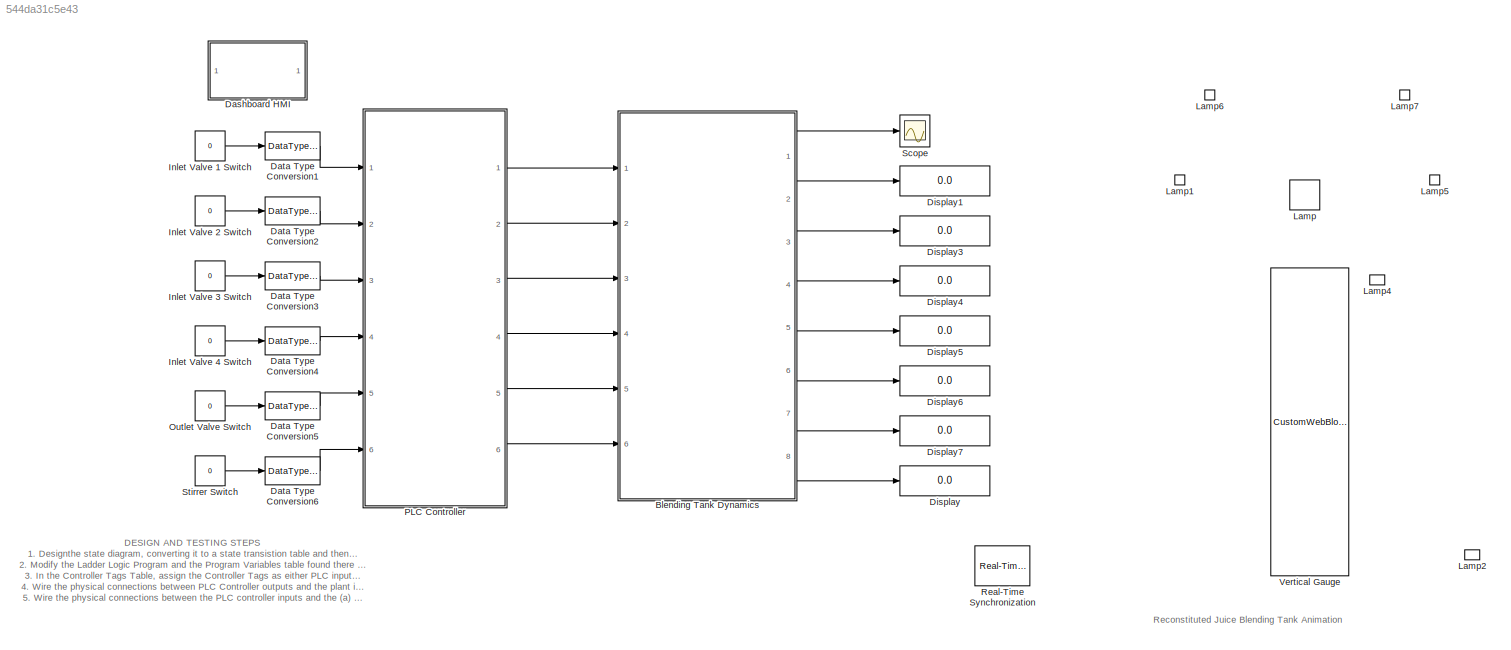
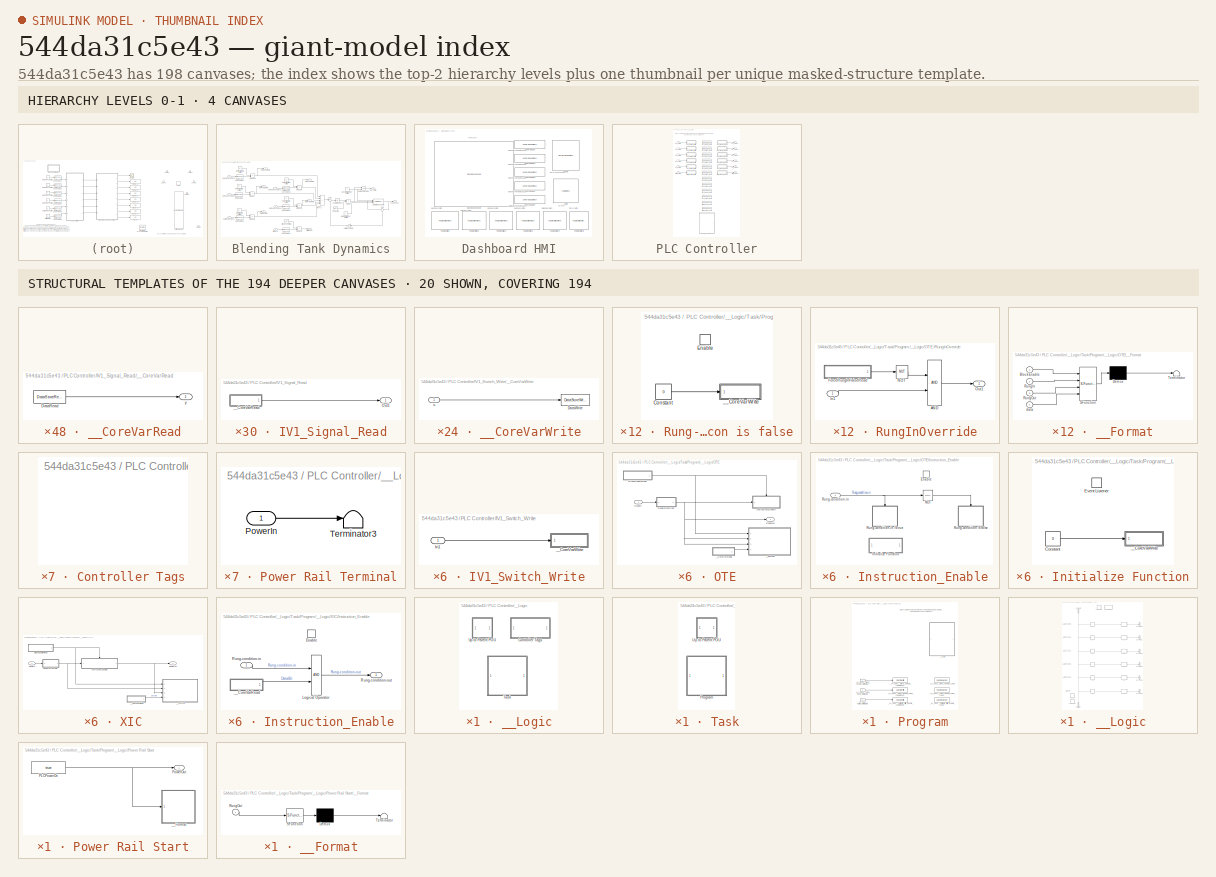
[diagram: thumbnail index - top-2 hierarchy levels (4 canvases) + 20 structural-template representatives of the remaining 194 canvases]
MODEL slx_544da31c5e43
KIND model
CONFIG AbsTol = auto
CONFIG EnableMultiTasking = off
CONFIG FixedStep = auto
CONFIG MaxStep = auto
CONFIG MinStep = auto
CONFIG PostLoadFcn = slplc.api.loadDataTypes;
CONFIG RelTol = 1e-3
CONFIG SampleTimeConstraint = Unconstrained
CONFIG SolverName = FixedStepAuto
CONFIG StartTime = 0.0
CONFIG StopTime = Inf
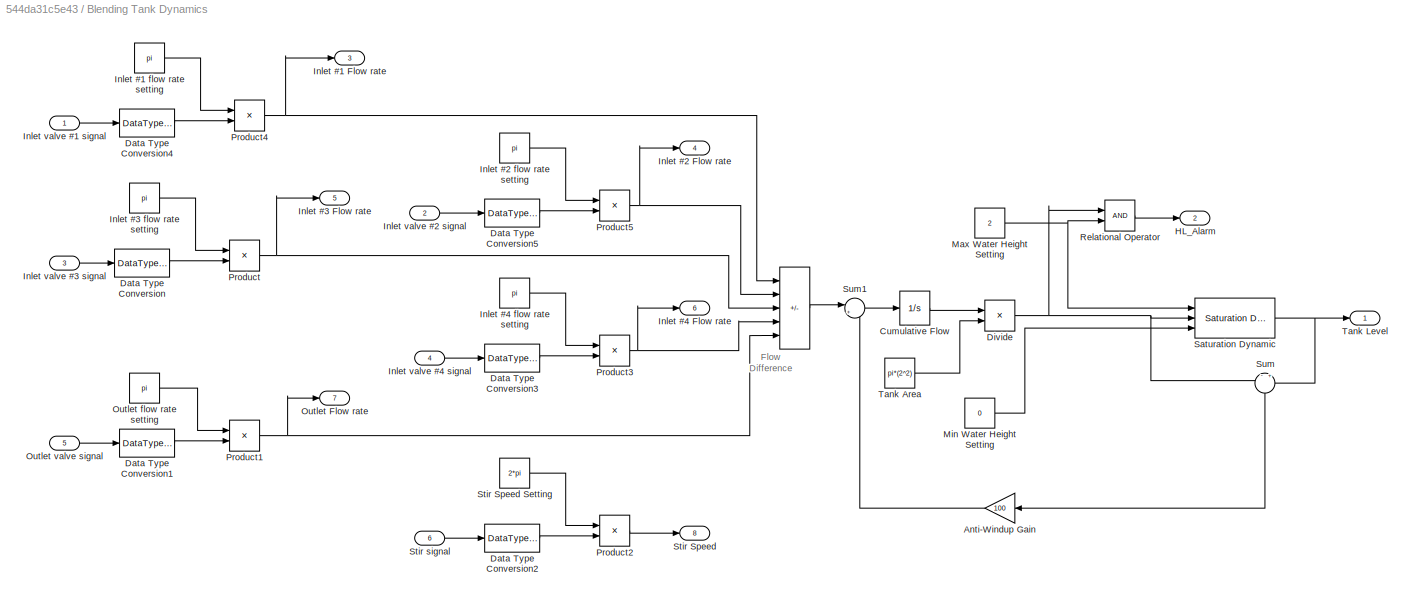
BLOCK [SubSystem] Blending Tank Dynamics
  Ports = [6, 8]
  RequestExecContextInheritance = off
BLOCK [Sum] Blending Tank Dynamics/ 
  IconShape = rectangular
  InputSameDT = on
  Inputs = ++++-
  OutDataTypeStr = Inherit: Same as first input
  Ports = [5, 1]
  SaturateOnIntegerOverflow = on
BLOCK [Gain] Blending Tank Dynamics/Anti-Windup Gain
  Gain = 100
  NameLocation = top
BLOCK [Integrator] Blending Tank Dynamics/Cumulative Flow
  Ports = [1, 1]
BLOCK [DataTypeConversion] Blending Tank Dynamics/Data Type Conversion
  OutDataTypeStr = double
BLOCK [DataTypeConversion] Blending Tank Dynamics/Data Type Conversion1
  OutDataTypeStr = double
BLOCK [DataTypeConversion] Blending Tank Dynamics/Data Type Conversion2
  OutDataTypeStr = double
BLOCK [DataTypeConversion] Blending Tank Dynamics/Data Type Conversion3
  OutDataTypeStr = double
BLOCK [DataTypeConversion] Blending Tank Dynamics/Data Type Conversion4
  OutDataTypeStr = double
BLOCK [DataTypeConversion] Blending Tank Dynamics/Data Type Conversion5
  OutDataTypeStr = double
BLOCK [Product] Blending Tank Dynamics/Divide
  Inputs = */
  Ports = [2, 1]
BLOCK [Outport] Blending Tank Dynamics/HL_Alarm
  Port = 2
BLOCK [Outport] Blending Tank Dynamics/Inlet #1 Flow rate
  Port = 3
BLOCK [Constant] Blending Tank Dynamics/Inlet #1 flow rate setting
  Value = pi
BLOCK [Outport] Blending Tank Dynamics/Inlet #2 Flow rate
  Port = 4
BLOCK [Constant] Blending Tank Dynamics/Inlet #2 flow rate setting
  Value = pi
BLOCK [Outport] Blending Tank Dynamics/Inlet #3 Flow rate
  Port = 5
BLOCK [Constant] Blending Tank Dynamics/Inlet #3 flow rate setting
  Value = pi
BLOCK [Outport] Blending Tank Dynamics/Inlet #4 Flow rate
  Port = 6
BLOCK [Constant] Blending Tank Dynamics/Inlet #4 flow rate setting
  Value = pi
BLOCK [Inport] Blending Tank Dynamics/Inlet valve #1 signal
BLOCK [Inport] Blending Tank Dynamics/Inlet valve #2 signal
  Port = 2
BLOCK [Inport] Blending Tank Dynamics/Inlet valve #3 signal
  Port = 3
BLOCK [Inport] Blending Tank Dynamics/Inlet valve #4 signal
  Port = 4
BLOCK [Constant] Blending Tank Dynamics/Max Water Height Setting
  Value = 2
BLOCK [Constant] Blending Tank Dynamics/Min Water Height Setting 
  Value = 0
BLOCK [Outport] Blending Tank Dynamics/Outlet Flow rate
  Port = 7
BLOCK [Constant] Blending Tank Dynamics/Outlet flow rate setting
  Value = pi
BLOCK [Inport] Blending Tank Dynamics/Outlet valve signal
  Port = 5
BLOCK [Product] Blending Tank Dynamics/Product
  Ports = [2, 1]
BLOCK [Product] Blending Tank Dynamics/Product1
  Ports = [2, 1]
BLOCK [Product] Blending Tank Dynamics/Product2
  Ports = [2, 1]
BLOCK [Product] Blending Tank Dynamics/Product3
  Ports = [2, 1]
BLOCK [Product] Blending Tank Dynamics/Product4
  Ports = [2, 1]
BLOCK [Product] Blending Tank Dynamics/Product5
  Ports = [2, 1]
BLOCK [RelationalOperator] Blending Tank Dynamics/Relational Operator
  InputSameDT = off
  OutDataTypeStr = boolean
  Ports = [2, 1]
  RndMeth = Simplest
BLOCK [Reference] Blending Tank Dynamics/Saturation Dynamic  REF=simulink/Discontinuities/Saturation
Dynamic
  Ports = [3, 1]
  SourceBlock = simulink/Discontinuities/Saturation\nDynamic
  SourceProductBaseCode = SL
  SourceType = Saturation Dynamic
BLOCK [Outport] Blending Tank Dynamics/Stir Speed
  Port = 8
BLOCK [Constant] Blending Tank Dynamics/Stir Speed Setting
  Value = 2*pi
BLOCK [Inport] Blending Tank Dynamics/Stir signal
  Port = 6
BLOCK [Sum] Blending Tank Dynamics/Sum
  Inputs = -|+
  NameLocation = left
  Ports = [2, 1]
BLOCK [Sum] Blending Tank Dynamics/Sum1
  Inputs = |++
  Ports = [2, 1]
BLOCK [Constant] Blending Tank Dynamics/Tank Area
  Value = pi*(2^2)
BLOCK [Outport] Blending Tank Dynamics/Tank Level
  InitialOutput = 0
  VectorParamsAs1DForOutWhenUnconnected = off
BLOCK [SubSystem] Dashboard HMI
  Ports = []
  RequestExecContextInheritance = off
BLOCK [DashboardScope] Dashboard HMI/Dashboard Scope
  LegendPosition = Hide
  ScaleAtStop = off
  TimeSpan = 110
  Ymax = 2
  Ymin = 0
BLOCK [CircularGaugeBlock] Dashboard HMI/Gauge
  LabelPosition = Hide
  ScaleMax = 10
  TickInterval = 1
BLOCK [LampBlock] Dashboard HMI/Lamp
  LabelPosition = Hide
BLOCK [LinearGaugeBlock] Dashboard HMI/Linear Gauge
  LabelPosition = Hide
  ScaleMax = 5
  TickInterval = 0.5
BLOCK [LinearGaugeBlock] Dashboard HMI/Linear Gauge1
  LabelPosition = Hide
  ScaleMax = 5
  TickInterval = 0.5
BLOCK [LinearGaugeBlock] Dashboard HMI/Linear Gauge2
  LabelPosition = Hide
  ScaleMax = 5
  TickInterval = 0.5
BLOCK [LinearGaugeBlock] Dashboard HMI/Linear Gauge3
  LabelPosition = Hide
  ScaleMax = 5
  TickInterval = 0.5
BLOCK [LinearGaugeBlock] Dashboard HMI/Linear Gauge4
  LabelPosition = Hide
  ScaleMax = 5
  TickInterval = 0.5
BLOCK [ToggleSwitchBlock] Dashboard HMI/Toggle Switch
  LabelPosition = Hide
BLOCK [ToggleSwitchBlock] Dashboard HMI/Toggle Switch1
  LabelPosition = Hide
BLOCK [ToggleSwitchBlock] Dashboard HMI/Toggle Switch2
  LabelPosition = Hide
BLOCK [ToggleSwitchBlock] Dashboard HMI/Toggle Switch3
  LabelPosition = Hide
BLOCK [ToggleSwitchBlock] Dashboard HMI/Toggle Switch4
  LabelPosition = Hide
BLOCK [ToggleSwitchBlock] Dashboard HMI/Toggle Switch5
  LabelPosition = Hide
BLOCK [DataTypeConversion] Data Type Conversion1
  OutDataTypeStr = BOOL
BLOCK [DataTypeConversion] Data Type Conversion2
  OutDataTypeStr = BOOL
BLOCK [DataTypeConversion] Data Type Conversion3
  OutDataTypeStr = BOOL
BLOCK [DataTypeConversion] Data Type Conversion4
  OutDataTypeStr = BOOL
BLOCK [DataTypeConversion] Data Type Conversion5
  OutDataTypeStr = BOOL
BLOCK [DataTypeConversion] Data Type Conversion6
  OutDataTypeStr = BOOL
BLOCK [Display] Display
  Decimation = 1
  Ports = [1]
BLOCK [Display] Display1
  Decimation = 1
  Ports = [1]
BLOCK [Display] Display3
  Decimation = 1
  Ports = [1]
BLOCK [Display] Display4
  Decimation = 1
  Ports = [1]
BLOCK [Display] Display5
  Decimation = 1
  Ports = [1]
BLOCK [Display] Display6
  Decimation = 1
  Ports = [1]
BLOCK [Display] Display7
  Decimation = 1
  Ports = [1]
BLOCK [Constant] Inlet Valve 1 Switch
  Value = 0
BLOCK [Constant] Inlet Valve 2 Switch
  Value = 0
BLOCK [Constant] Inlet Valve 3 Switch
  Value = 0
BLOCK [Constant] Inlet Valve 4 Switch
  Value = 0
BLOCK [LampBlock] Lamp
  LabelPosition = Hide
BLOCK [LampBlock] Lamp1
  LabelPosition = Hide
BLOCK [LampBlock] Lamp2
  LabelPosition = Hide
BLOCK [LampBlock] Lamp4
  LabelPosition = Hide
BLOCK [LampBlock] Lamp5
  LabelPosition = Hide
BLOCK [LampBlock] Lamp6
  LabelPosition = Hide
BLOCK [LampBlock] Lamp7
  LabelPosition = Hide
BLOCK [Constant] Outlet Valve Switch
  Value = 0
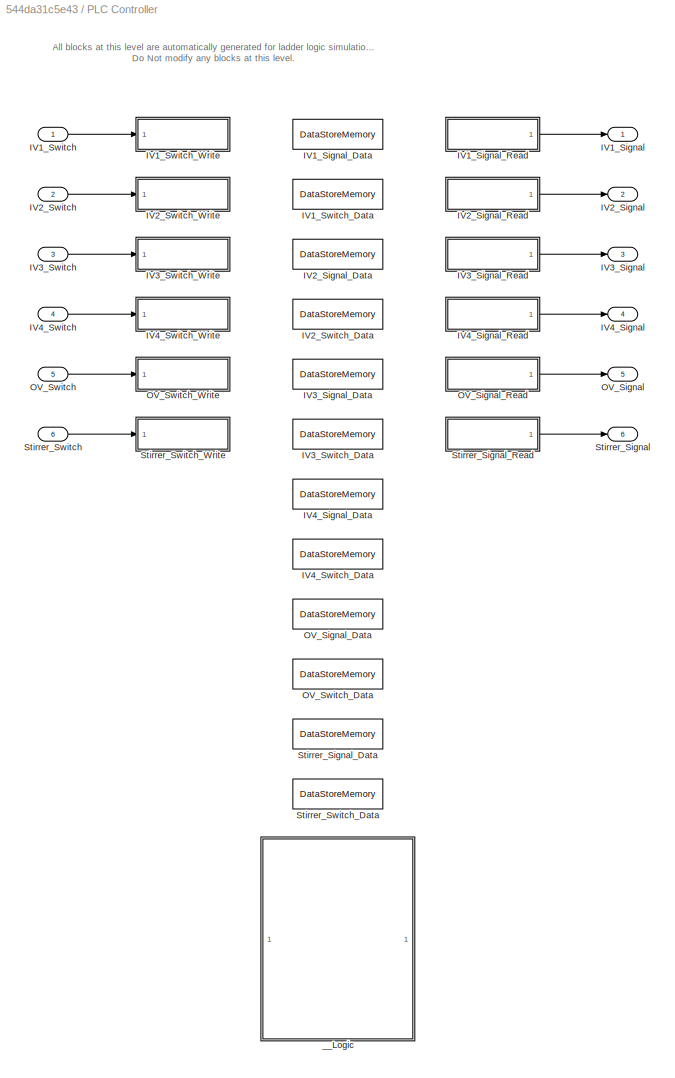
BLOCK [SubSystem] PLC Controller
  NameLocation = top
  OpenFcn = slplc.callbacks.openPOUBlock(gcb);
  Ports = [6, 6]
  RequestExecContextInheritance = off
  TreatAsAtomicUnit = on
BLOCK [Outport] PLC Controller/IV1_Signal
BLOCK [DataStoreMemory] PLC Controller/IV1_Signal_Data
  DataStoreName = xxx_PLC_VAR_IV1_Signal
  Dimensions = 1
  OutDataTypeStr = boolean
  Priority = 10
  ShowAdditionalParam = off
  SignalType = real
  Tag = POUVariable
BLOCK [SubSystem] PLC Controller/IV1_Signal_Read
  DisableCoverage = on
  MaskHideContents = on
  Ports = [0, 1]
  Priority = 13
  RequestExecContextInheritance = off
  ShowPortLabels = none
  TreatAsAtomicUnit = on
BLOCK [Outport] PLC Controller/IV1_Signal_Read/Out1
  VectorParamsAs1DForOutWhenUnconnected = off
BLOCK [SubSystem] PLC Controller/IV1_Signal_Read/__CoreVarRead
  DisableCoverage = on
  MaskHideContents = on
  Ports = [0, 1]
  RequestExecContextInheritance = off
  ShowPortLabels = none
  Tag = CoreVarReadBlock
  TreatAsAtomicUnit = on
BLOCK [DataStoreRead] PLC Controller/IV1_Signal_Read/__CoreVarRead/DataRead
  DataStoreName = xxx_PLC_VAR_IV1_Signal
  Ports = [0, 1]
BLOCK [Outport] PLC Controller/IV1_Signal_Read/__CoreVarRead/y
  VectorParamsAs1DForOutWhenUnconnected = off
BLOCK [Inport] PLC Controller/IV1_Switch
  OutDataTypeStr = BOOL
BLOCK [DataStoreMemory] PLC Controller/IV1_Switch_Data
  DataStoreName = xxx_PLC_VAR_IV1_Switch
  Dimensions = 1
  OutDataTypeStr = BOOL
  Priority = 10
  ShowAdditionalParam = off
  SignalType = real
  Tag = POUVariable
BLOCK [SubSystem] PLC Controller/IV1_Switch_Write
  DisableCoverage = on
  MaskHideContents = on
  Ports = [1]
  Priority = 11
  RequestExecContextInheritance = off
  ShowPortLabels = none
  TreatAsAtomicUnit = on
BLOCK [Inport] PLC Controller/IV1_Switch_Write/In1
BLOCK [SubSystem] PLC Controller/IV1_Switch_Write/__CoreVarWrite
  DisableCoverage = on
  MaskHideContents = on
  Ports = [1]
  RequestExecContextInheritance = off
  ShowPortLabels = none
  Tag = CoreVarWriteBlock
  TreatAsAtomicUnit = on
BLOCK [DataStoreWrite] PLC Controller/IV1_Switch_Write/__CoreVarWrite/DataWrite
  DataStoreName = xxx_PLC_VAR_IV1_Switch
  Ports = [1]
BLOCK [Inport] PLC Controller/IV1_Switch_Write/__CoreVarWrite/u
BLOCK [Outport] PLC Controller/IV2_Signal
  Port = 2
BLOCK [DataStoreMemory] PLC Controller/IV2_Signal_Data
  DataStoreName = xxx_PLC_VAR_IV2_Signal
  Dimensions = 1
  OutDataTypeStr = boolean
  Priority = 10
  ShowAdditionalParam = off
  SignalType = real
  Tag = POUVariable
BLOCK [SubSystem] PLC Controller/IV2_Signal_Read
  DisableCoverage = on
  MaskHideContents = on
  Ports = [0, 1]
  Priority = 13
  RequestExecContextInheritance = off
  ShowPortLabels = none
  TreatAsAtomicUnit = on
BLOCK [Outport] PLC Controller/IV2_Signal_Read/Out1
  VectorParamsAs1DForOutWhenUnconnected = off
BLOCK [SubSystem] PLC Controller/IV2_Signal_Read/__CoreVarRead
  DisableCoverage = on
  MaskHideContents = on
  Ports = [0, 1]
  RequestExecContextInheritance = off
  ShowPortLabels = none
  Tag = CoreVarReadBlock
  TreatAsAtomicUnit = on
BLOCK [DataStoreRead] PLC Controller/IV2_Signal_Read/__CoreVarRead/DataRead
  DataStoreName = xxx_PLC_VAR_IV2_Signal
  Ports = [0, 1]
BLOCK [Outport] PLC Controller/IV2_Signal_Read/__CoreVarRead/y
  VectorParamsAs1DForOutWhenUnconnected = off
BLOCK [Inport] PLC Controller/IV2_Switch
  OutDataTypeStr = BOOL
  Port = 2
BLOCK [DataStoreMemory] PLC Controller/IV2_Switch_Data
  DataStoreName = xxx_PLC_VAR_IV2_Switch
  Dimensions = 1
  OutDataTypeStr = BOOL
  Priority = 10
  ShowAdditionalParam = off
  SignalType = real
  Tag = POUVariable
BLOCK [SubSystem] PLC Controller/IV2_Switch_Write
  DisableCoverage = on
  MaskHideContents = on
  Ports = [1]
  Priority = 11
  RequestExecContextInheritance = off
  ShowPortLabels = none
  TreatAsAtomicUnit = on
BLOCK [Inport] PLC Controller/IV2_Switch_Write/In1
BLOCK [SubSystem] PLC Controller/IV2_Switch_Write/__CoreVarWrite
  DisableCoverage = on
  MaskHideContents = on
  Ports = [1]
  RequestExecContextInheritance = off
  ShowPortLabels = none
  Tag = CoreVarWriteBlock
  TreatAsAtomicUnit = on
BLOCK [DataStoreWrite] PLC Controller/IV2_Switch_Write/__CoreVarWrite/DataWrite
  DataStoreName = xxx_PLC_VAR_IV2_Switch
  Ports = [1]
BLOCK [Inport] PLC Controller/IV2_Switch_Write/__CoreVarWrite/u
BLOCK [Outport] PLC Controller/IV3_Signal
  Port = 3
BLOCK [DataStoreMemory] PLC Controller/IV3_Signal_Data
  DataStoreName = xxx_PLC_VAR_IV3_Signal
  Dimensions = 1
  OutDataTypeStr = boolean
  Priority = 10
  ShowAdditionalParam = off
  SignalType = real
  Tag = POUVariable
BLOCK [SubSystem] PLC Controller/IV3_Signal_Read
  DisableCoverage = on
  MaskHideContents = on
  Ports = [0, 1]
  Priority = 13
  RequestExecContextInheritance = off
  ShowPortLabels = none
  TreatAsAtomicUnit = on
BLOCK [Outport] PLC Controller/IV3_Signal_Read/Out1
  VectorParamsAs1DForOutWhenUnconnected = off
BLOCK [SubSystem] PLC Controller/IV3_Signal_Read/__CoreVarRead
  DisableCoverage = on
  MaskHideContents = on
  Ports = [0, 1]
  RequestExecContextInheritance = off
  ShowPortLabels = none
  Tag = CoreVarReadBlock
  TreatAsAtomicUnit = on
BLOCK [DataStoreRead] PLC Controller/IV3_Signal_Read/__CoreVarRead/DataRead
  DataStoreName = xxx_PLC_VAR_IV3_Signal
  Ports = [0, 1]
BLOCK [Outport] PLC Controller/IV3_Signal_Read/__CoreVarRead/y
  VectorParamsAs1DForOutWhenUnconnected = off
BLOCK [Inport] PLC Controller/IV3_Switch
  OutDataTypeStr = BOOL
  Port = 3
BLOCK [DataStoreMemory] PLC Controller/IV3_Switch_Data
  DataStoreName = xxx_PLC_VAR_IV3_Switch
  Dimensions = 1
  OutDataTypeStr = BOOL
  Priority = 10
  ShowAdditionalParam = off
  SignalType = real
  Tag = POUVariable
BLOCK [SubSystem] PLC Controller/IV3_Switch_Write
  DisableCoverage = on
  MaskHideContents = on
  Ports = [1]
  Priority = 11
  RequestExecContextInheritance = off
  ShowPortLabels = none
  TreatAsAtomicUnit = on
BLOCK [Inport] PLC Controller/IV3_Switch_Write/In1
BLOCK [SubSystem] PLC Controller/IV3_Switch_Write/__CoreVarWrite
  DisableCoverage = on
  MaskHideContents = on
  Ports = [1]
  RequestExecContextInheritance = off
  ShowPortLabels = none
  Tag = CoreVarWriteBlock
  TreatAsAtomicUnit = on
BLOCK [DataStoreWrite] PLC Controller/IV3_Switch_Write/__CoreVarWrite/DataWrite
  DataStoreName = xxx_PLC_VAR_IV3_Switch
  Ports = [1]
BLOCK [Inport] PLC Controller/IV3_Switch_Write/__CoreVarWrite/u
BLOCK [Outport] PLC Controller/IV4_Signal
  Port = 4
BLOCK [DataStoreMemory] PLC Controller/IV4_Signal_Data
  DataStoreName = xxx_PLC_VAR_IV4_Signal
  Dimensions = 1
  OutDataTypeStr = boolean
  Priority = 10
  ShowAdditionalParam = off
  SignalType = real
  Tag = POUVariable
BLOCK [SubSystem] PLC Controller/IV4_Signal_Read
  DisableCoverage = on
  MaskHideContents = on
  Ports = [0, 1]
  Priority = 13
  RequestExecContextInheritance = off
  ShowPortLabels = none
  TreatAsAtomicUnit = on
BLOCK [Outport] PLC Controller/IV4_Signal_Read/Out1
  VectorParamsAs1DForOutWhenUnconnected = off
BLOCK [SubSystem] PLC Controller/IV4_Signal_Read/__CoreVarRead
  DisableCoverage = on
  MaskHideContents = on
  Ports = [0, 1]
  RequestExecContextInheritance = off
  ShowPortLabels = none
  Tag = CoreVarReadBlock
  TreatAsAtomicUnit = on
BLOCK [DataStoreRead] PLC Controller/IV4_Signal_Read/__CoreVarRead/DataRead
  DataStoreName = xxx_PLC_VAR_IV4_Signal
  Ports = [0, 1]
BLOCK [Outport] PLC Controller/IV4_Signal_Read/__CoreVarRead/y
  VectorParamsAs1DForOutWhenUnconnected = off
BLOCK [Inport] PLC Controller/IV4_Switch
  OutDataTypeStr = BOOL
  Port = 4
BLOCK [DataStoreMemory] PLC Controller/IV4_Switch_Data
  DataStoreName = xxx_PLC_VAR_IV4_Switch
  Dimensions = 1
  OutDataTypeStr = BOOL
  Priority = 10
  ShowAdditionalParam = off
  SignalType = real
  Tag = POUVariable
BLOCK [SubSystem] PLC Controller/IV4_Switch_Write
  DisableCoverage = on
  MaskHideContents = on
  Ports = [1]
  Priority = 11
  RequestExecContextInheritance = off
  ShowPortLabels = none
  TreatAsAtomicUnit = on
BLOCK [Inport] PLC Controller/IV4_Switch_Write/In1
BLOCK [SubSystem] PLC Controller/IV4_Switch_Write/__CoreVarWrite
  DisableCoverage = on
  MaskHideContents = on
  Ports = [1]
  RequestExecContextInheritance = off
  ShowPortLabels = none
  Tag = CoreVarWriteBlock
  TreatAsAtomicUnit = on
BLOCK [DataStoreWrite] PLC Controller/IV4_Switch_Write/__CoreVarWrite/DataWrite
  DataStoreName = xxx_PLC_VAR_IV4_Switch
  Ports = [1]
BLOCK [Inport] PLC Controller/IV4_Switch_Write/__CoreVarWrite/u
BLOCK [Outport] PLC Controller/OV_Signal
  Port = 5
BLOCK [DataStoreMemory] PLC Controller/OV_Signal_Data
  DataStoreName = xxx_PLC_VAR_OV_Signal
  Dimensions = 1
  OutDataTypeStr = boolean
  Priority = 10
  ShowAdditionalParam = off
  SignalType = real
  Tag = POUVariable
BLOCK [SubSystem] PLC Controller/OV_Signal_Read
  DisableCoverage = on
  MaskHideContents = on
  Ports = [0, 1]
  Priority = 13
  RequestExecContextInheritance = off
  ShowPortLabels = none
  TreatAsAtomicUnit = on
BLOCK [Outport] PLC Controller/OV_Signal_Read/Out1
  VectorParamsAs1DForOutWhenUnconnected = off
BLOCK [SubSystem] PLC Controller/OV_Signal_Read/__CoreVarRead
  DisableCoverage = on
  MaskHideContents = on
  Ports = [0, 1]
  RequestExecContextInheritance = off
  ShowPortLabels = none
  Tag = CoreVarReadBlock
  TreatAsAtomicUnit = on
BLOCK [DataStoreRead] PLC Controller/OV_Signal_Read/__CoreVarRead/DataRead
  DataStoreName = xxx_PLC_VAR_OV_Signal
  Ports = [0, 1]
BLOCK [Outport] PLC Controller/OV_Signal_Read/__CoreVarRead/y
  VectorParamsAs1DForOutWhenUnconnected = off
BLOCK [Inport] PLC Controller/OV_Switch
  OutDataTypeStr = BOOL
  Port = 5
BLOCK [DataStoreMemory] PLC Controller/OV_Switch_Data
  DataStoreName = xxx_PLC_VAR_OV_Switch
  Dimensions = 1
  OutDataTypeStr = BOOL
  Priority = 10
  ShowAdditionalParam = off
  SignalType = real
  Tag = POUVariable
BLOCK [SubSystem] PLC Controller/OV_Switch_Write
  DisableCoverage = on
  MaskHideContents = on
  Ports = [1]
  Priority = 11
  RequestExecContextInheritance = off
  ShowPortLabels = none
  TreatAsAtomicUnit = on
BLOCK [Inport] PLC Controller/OV_Switch_Write/In1
BLOCK [SubSystem] PLC Controller/OV_Switch_Write/__CoreVarWrite
  DisableCoverage = on
  MaskHideContents = on
  Ports = [1]
  RequestExecContextInheritance = off
  ShowPortLabels = none
  Tag = CoreVarWriteBlock
  TreatAsAtomicUnit = on
BLOCK [DataStoreWrite] PLC Controller/OV_Switch_Write/__CoreVarWrite/DataWrite
  DataStoreName = xxx_PLC_VAR_OV_Switch
  Ports = [1]
BLOCK [Inport] PLC Controller/OV_Switch_Write/__CoreVarWrite/u
BLOCK [Outport] PLC Controller/Stirrer_Signal
  Port = 6
BLOCK [DataStoreMemory] PLC Controller/Stirrer_Signal_Data
  DataStoreName = xxx_PLC_VAR_Stirrer_Signal
  Dimensions = 1
  OutDataTypeStr = boolean
  Priority = 10
  ShowAdditionalParam = off
  SignalType = real
  Tag = POUVariable
BLOCK [SubSystem] PLC Controller/Stirrer_Signal_Read
  DisableCoverage = on
  MaskHideContents = on
  Ports = [0, 1]
  Priority = 13
  RequestExecContextInheritance = off
  ShowPortLabels = none
  TreatAsAtomicUnit = on
BLOCK [Outport] PLC Controller/Stirrer_Signal_Read/Out1
  VectorParamsAs1DForOutWhenUnconnected = off
BLOCK [SubSystem] PLC Controller/Stirrer_Signal_Read/__CoreVarRead
  DisableCoverage = on
  MaskHideContents = on
  Ports = [0, 1]
  RequestExecContextInheritance = off
  ShowPortLabels = none
  Tag = CoreVarReadBlock
  TreatAsAtomicUnit = on
BLOCK [DataStoreRead] PLC Controller/Stirrer_Signal_Read/__CoreVarRead/DataRead
  DataStoreName = xxx_PLC_VAR_Stirrer_Signal
  Ports = [0, 1]
BLOCK [Outport] PLC Controller/Stirrer_Signal_Read/__CoreVarRead/y
  VectorParamsAs1DForOutWhenUnconnected = off
BLOCK [Inport] PLC Controller/Stirrer_Switch
  OutDataTypeStr = BOOL
  Port = 6
BLOCK [DataStoreMemory] PLC Controller/Stirrer_Switch_Data
  DataStoreName = xxx_PLC_VAR_Stirrer_Switch
  Dimensions = 1
  OutDataTypeStr = BOOL
  Priority = 10
  ShowAdditionalParam = off
  SignalType = real
  Tag = POUVariable
BLOCK [SubSystem] PLC Controller/Stirrer_Switch_Write
  DisableCoverage = on
  MaskHideContents = on
  Ports = [1]
  Priority = 11
  RequestExecContextInheritance = off
  ShowPortLabels = none
  TreatAsAtomicUnit = on
BLOCK [Inport] PLC Controller/Stirrer_Switch_Write/In1
BLOCK [SubSystem] PLC Controller/Stirrer_Switch_Write/__CoreVarWrite
  DisableCoverage = on
  MaskHideContents = on
  Ports = [1]
  RequestExecContextInheritance = off
  ShowPortLabels = none
  Tag = CoreVarWriteBlock
  TreatAsAtomicUnit = on
BLOCK [DataStoreWrite] PLC Controller/Stirrer_Switch_Write/__CoreVarWrite/DataWrite
  DataStoreName = xxx_PLC_VAR_Stirrer_Switch
  Ports = [1]
BLOCK [Inport] PLC Controller/Stirrer_Switch_Write/__CoreVarWrite/u
BLOCK [SubSystem] PLC Controller/__Logic
  Ports = []
  Priority = 12
  RequestExecContextInheritance = off
  TreatAsAtomicUnit = on
  UserDataPersistent = on
BLOCK [SubSystem] PLC Controller/__Logic/Controller Tags
  DisableCoverage = on
  MaskHideContents = on
  OpenFcn = slplc.callbacks.openControllerVariableSS(gcb);
  Ports = []
  RequestExecContextInheritance = off
  Tag = ControllerVariableSS
  TreatAsAtomicUnit = on
  UserDataPersistent = on
BLOCK [SubSystem] PLC Controller/__Logic/Task
  NameLocation = top
  OpenFcn = slplc.callbacks.openTaskBlock(gcb);
  Ports = []
  RequestExecContextInheritance = off
  TreatAsAtomicUnit = on
BLOCK [SubSystem] PLC Controller/__Logic/Task/Program
  NameLocation = top
  OpenFcn = slplc.callbacks.openPOUBlock(gcb);
  Ports = []
  RequestExecContextInheritance = off
  TreatAsAtomicUnit = on
BLOCK [SubSystem] PLC Controller/__Logic/Task/Program/__Logic
  Ports = []
  Priority = 12
  RequestExecContextInheritance = off
  TreatAsAtomicUnit = on
  UserDataPersistent = on
BLOCK [SubSystem] PLC Controller/__Logic/Task/Program/__Logic/Add Rungs
  DisableCoverage = on
  MaskHideContents = on
  Ports = []
  RequestExecContextInheritance = off
  TreatAsAtomicUnit = on
BLOCK [SubSystem] PLC Controller/__Logic/Task/Program/__Logic/Add Single Rung
  DisableCoverage = on
  MaskHideContents = on
  OpenFcn = slplc.callbacks.addLadderRungs(gcb);
  Ports = []
  RequestExecContextInheritance = off
  TreatAsAtomicUnit = on
BLOCK [SubSystem] PLC Controller/__Logic/Task/Program/__Logic/OTE
  AttributesFormatString = %<PLCOperandTag>
  MaskHideContents = on
  NameLocation = top
  Ports = [1, 1]
  Priority = 3
  RequestExecContextInheritance = off
  TreatAsAtomicUnit = on
BLOCK [SubSystem] PLC Controller/__Logic/Task/Program/__Logic/OTE/BlockEnableRead
  DisableCoverage = on
  MaskHideContents = on
  Ports = [0, 1]
  RequestExecContextInheritance = off
  ShowPortLabels = none
  TreatAsAtomicUnit = on
BLOCK [Outport] PLC Controller/__Logic/Task/Program/__Logic/OTE/BlockEnableRead/Out1
  VectorParamsAs1DForOutWhenUnconnected = off
BLOCK [SubSystem] PLC Controller/__Logic/Task/Program/__Logic/OTE/BlockEnableRead/__CoreLabelRead
  DisableCoverage = on
  MaskHideContents = on
  Ports = [0, 1]
  RequestExecContextInheritance = off
  ShowPortLabels = none
  Tag = CoreVarReadBlock
  TreatAsAtomicUnit = on
BLOCK [DataStoreRead] PLC Controller/__Logic/Task/Program/__Logic/OTE/BlockEnableRead/__CoreLabelRead/DataRead
  DataStoreName = x_PLCLabel__s4_3653__Block_Enable
  Ports = [0, 1]
BLOCK [Outport] PLC Controller/__Logic/Task/Program/__Logic/OTE/BlockEnableRead/__CoreLabelRead/Out1
  VectorParamsAs1DForOutWhenUnconnected = off
BLOCK [SubSystem] PLC Controller/__Logic/Task/Program/__Logic/OTE/Instruction_Enable
  Ports = [1, 0, 1]
  Priority = 12
  RequestExecContextInheritance = off
  TreatAsAtomicUnit = on
BLOCK [EnablePort] PLC Controller/__Logic/Task/Program/__Logic/OTE/Instruction_Enable/Enable
  Ports = []
BLOCK [SubSystem] PLC Controller/__Logic/Task/Program/__Logic/OTE/Instruction_Enable/Initialize Function
  Ports = []
  RequestExecContextInheritance = off
  TreatAsAtomicUnit = on
BLOCK [Constant] PLC Controller/__Logic/Task/Program/__Logic/OTE/Instruction_Enable/Initialize Function/Constant
  OutDataTypeStr = BOOL
  Value = 0
BLOCK [EventListener] PLC Controller/__Logic/Task/Program/__Logic/OTE/Instruction_Enable/Initialize Function/Event Listener
  DisableCoverage = on
  EventName = reset
BLOCK [SubSystem] PLC Controller/__Logic/Task/Program/__Logic/OTE/Instruction_Enable/Initialize Function/__CoreVarWrite
  DisableCoverage = on
  MaskHideContents = on
  Ports = [1]
  RequestExecContextInheritance = off
  ShowPortLabels = none
  Tag = CoreVarWriteBlock
  TreatAsAtomicUnit = on
BLOCK [DataStoreWrite] PLC Controller/__Logic/Task/Program/__Logic/OTE/Instruction_Enable/Initialize Function/__CoreVarWrite/DataWrite
  DataStoreName = xxx_PLC_VAR_IV1_Signal
  Ports = [1]
BLOCK [Inport] PLC Controller/__Logic/Task/Program/__Logic/OTE/Instruction_Enable/Initialize Function/__CoreVarWrite/u
BLOCK [Logic] PLC Controller/__Logic/Task/Program/__Logic/OTE/Instruction_Enable/NOT
  AllPortsSameDT = off
  IconShape = distinctive
  Operator = NOT
  OutDataTypeStr = boolean
  Ports = [1, 1]
BLOCK [SubSystem] PLC Controller/__Logic/Task/Program/__Logic/OTE/Instruction_Enable/Rung-condition is false
  DisableCoverage = on
  Ports = [0, 0, 1]
  Priority = 12
  RequestExecContextInheritance = off
BLOCK [Constant] PLC Controller/__Logic/Task/Program/__Logic/OTE/Instruction_Enable/Rung-condition is false/Constant
  OutDataTypeStr = BOOL
  Value = 0
BLOCK [EnablePort] PLC Controller/__Logic/Task/Program/__Logic/OTE/Instruction_Enable/Rung-condition is false/Enable
  Ports = []
BLOCK [SubSystem] PLC Controller/__Logic/Task/Program/__Logic/OTE/Instruction_Enable/Rung-condition is false/__CoreVarWrite
  DisableCoverage = on
  MaskHideContents = on
  Ports = [1]
  RequestExecContextInheritance = off
  ShowPortLabels = none
  Tag = CoreVarWriteBlock
  TreatAsAtomicUnit = on
BLOCK [DataStoreWrite] PLC Controller/__Logic/Task/Program/__Logic/OTE/Instruction_Enable/Rung-condition is false/__CoreVarWrite/DataWrite
  DataStoreName = xxx_PLC_VAR_IV1_Signal
  Ports = [1]
BLOCK [Inport] PLC Controller/__Logic/Task/Program/__Logic/OTE/Instruction_Enable/Rung-condition is false/__CoreVarWrite/u
BLOCK [Inport] PLC Controller/__Logic/Task/Program/__Logic/OTE/Instruction_Enable/Rung-condition-in
  OutDataTypeStr = BOOL
BLOCK [SubSystem] PLC Controller/__Logic/Task/Program/__Logic/OTE/Instruction_Enable/Rung-condition-in is true
  DisableCoverage = on
  Ports = [0, 0, 1]
  Priority = 12
  RequestExecContextInheritance = off
BLOCK [Constant] PLC Controller/__Logic/Task/Program/__Logic/OTE/Instruction_Enable/Rung-condition-in is true/Constant
  OutDataTypeStr = BOOL
BLOCK [EnablePort] PLC Controller/__Logic/Task/Program/__Logic/OTE/Instruction_Enable/Rung-condition-in is true/Enable
  Ports = []
BLOCK [SubSystem] PLC Controller/__Logic/Task/Program/__Logic/OTE/Instruction_Enable/Rung-condition-in is true/__CoreVarWrite
  DisableCoverage = on
  MaskHideContents = on
  Ports = [1]
  RequestExecContextInheritance = off
  ShowPortLabels = none
  Tag = CoreVarWriteBlock
  TreatAsAtomicUnit = on
BLOCK [DataStoreWrite] PLC Controller/__Logic/Task/Program/__Logic/OTE/Instruction_Enable/Rung-condition-in is true/__CoreVarWrite/DataWrite
  DataStoreName = xxx_PLC_VAR_IV1_Signal
  Ports = [1]
BLOCK [Inport] PLC Controller/__Logic/Task/Program/__Logic/OTE/Instruction_Enable/Rung-condition-in is true/__CoreVarWrite/u
BLOCK [Inport] PLC Controller/__Logic/Task/Program/__Logic/OTE/RungIn
  PortDimensions = 1
  VarSizeSig = No
BLOCK [SubSystem] PLC Controller/__Logic/Task/Program/__Logic/OTE/RungInOverride
  DisableCoverage = on
  MaskHideContents = on
  Ports = [1, 1]
  RequestExecContextInheritance = off
  TreatAsAtomicUnit = on
BLOCK [Logic] PLC Controller/__Logic/Task/Program/__Logic/OTE/RungInOverride/AND
  AllPortsSameDT = off
  OutDataTypeStr = boolean
  Ports = [2, 1]
BLOCK [SubSystem] PLC Controller/__Logic/Task/Program/__Logic/OTE/RungInOverride/ForceRungInFalseRead
  DisableCoverage = on
  MaskHideContents = on
  Ports = [0, 1]
  RequestExecContextInheritance = off
  ShowPortLabels = none
  TreatAsAtomicUnit = on
BLOCK [Outport] PLC Controller/__Logic/Task/Program/__Logic/OTE/RungInOverride/ForceRungInFalseRead/Out1
  VectorParamsAs1DForOutWhenUnconnected = off
BLOCK [SubSystem] PLC Controller/__Logic/Task/Program/__Logic/OTE/RungInOverride/ForceRungInFalseRead/__CoreLabelRead
  DisableCoverage = on
  MaskHideContents = on
  Ports = [0, 1]
  RequestExecContextInheritance = off
  ShowPortLabels = none
  Tag = CoreVarReadBlock
  TreatAsAtomicUnit = on
BLOCK [DataStoreRead] PLC Controller/__Logic/Task/Program/__Logic/OTE/RungInOverride/ForceRungInFalseRead/__CoreLabelRead/DataRead
  DataStoreName = x_PLCLabel__s4_3653__Force_RungIn_False
  Ports = [0, 1]
BLOCK [Outport] PLC Controller/__Logic/Task/Program/__Logic/OTE/RungInOverride/ForceRungInFalseRead/__CoreLabelRead/Out1
  VectorParamsAs1DForOutWhenUnconnected = off
BLOCK [Inport] PLC Controller/__Logic/Task/Program/__Logic/OTE/RungInOverride/In1
BLOCK [Logic] PLC Controller/__Logic/Task/Program/__Logic/OTE/RungInOverride/NOT
  AllPortsSameDT = off
  IconShape = distinctive
  Operator = NOT
  OutDataTypeStr = boolean
  Ports = [1, 1]
BLOCK [Outport] PLC Controller/__Logic/Task/Program/__Logic/OTE/RungInOverride/Out1
  VectorParamsAs1DForOutWhenUnconnected = off
BLOCK [Outport] PLC Controller/__Logic/Task/Program/__Logic/OTE/RungOut
  InitialOutput = false
  OutDataTypeStr = BOOL
  PortDimensions = 1
  VarSizeSig = No
  VectorParamsAs1DForOutWhenUnconnected = off
BLOCK [SubSystem] PLC Controller/__Logic/Task/Program/__Logic/OTE/__CoreVarRead
  DisableCoverage = on
  MaskHideContents = on
  Ports = [0, 1]
  RequestExecContextInheritance = off
  ShowPortLabels = none
  Tag = CoreVarReadBlock
  TreatAsAtomicUnit = on
BLOCK [DataStoreRead] PLC Controller/__Logic/Task/Program/__Logic/OTE/__CoreVarRead/DataRead
  DataStoreName = xxx_PLC_VAR_IV1_Signal
  Ports = [0, 1]
BLOCK [Outport] PLC Controller/__Logic/Task/Program/__Logic/OTE/__CoreVarRead/y
  VectorParamsAs1DForOutWhenUnconnected = off
BLOCK [SubSystem] PLC Controller/__Logic/Task/Program/__Logic/OTE/__Format
  DisableCoverage = on
  ErrorFcn = Stateflow.Translate.translate
  InitFcn = slplc.utils.setBlockAppearance('reset', '%<PLCOperandTag>');
  MaskHideContents = on
  PermitHierarchicalResolution = ExplicitOnly
  Ports = [4]
  Priority = 20
  RequestExecContextInheritance = off
  SFBlockType = MATLAB Function
  StopFcn = slplc.utils.setBlockAppearance('reset', '%<PLCOperandTag>');
  Tag = PLC_Format_Boolean
  TreatAsAtomicUnit = on
BLOCK [Demux] PLC Controller/__Logic/Task/Program/__Logic/OTE/__Format/ Demux 
  Outputs = 1
  Ports = [1, 1]
BLOCK [S-Function] PLC Controller/__Logic/Task/Program/__Logic/OTE/__Format/ SFunction 
  EnableBusSupport = on
  FunctionName = sf_sfun
  PortCounts = [4 1]
  Ports = [4, 1]
  SFcnIsStateOwnerBlock = off
  SFunctionDeploymentMode = off
  Tag = Stateflow S-Function 22
BLOCK [Terminator] PLC Controller/__Logic/Task/Program/__Logic/OTE/__Format/ Terminator 
BLOCK [Inport] PLC Controller/__Logic/Task/Program/__Logic/OTE/__Format/BlockEnable
BLOCK [Inport] PLC Controller/__Logic/Task/Program/__Logic/OTE/__Format/RungIn
  Port = 2
BLOCK [Inport] PLC Controller/__Logic/Task/Program/__Logic/OTE/__Format/RungOut
  Port = 3
BLOCK [Inport] PLC Controller/__Logic/Task/Program/__Logic/OTE/__Format/data
  Port = 4
BLOCK [SubSystem] PLC Controller/__Logic/Task/Program/__Logic/OTE1
  AttributesFormatString = %<PLCOperandTag>
  MaskHideContents = on
  NameLocation = top
  Ports = [1, 1]
  Priority = 6
  RequestExecContextInheritance = off
  TreatAsAtomicUnit = on
BLOCK [SubSystem] PLC Controller/__Logic/Task/Program/__Logic/OTE1/BlockEnableRead
  DisableCoverage = on
  MaskHideContents = on
  Ports = [0, 1]
  RequestExecContextInheritance = off
  ShowPortLabels = none
  TreatAsAtomicUnit = on
BLOCK [Outport] PLC Controller/__Logic/Task/Program/__Logic/OTE1/BlockEnableRead/Out1
  VectorParamsAs1DForOutWhenUnconnected = off
BLOCK [SubSystem] PLC Controller/__Logic/Task/Program/__Logic/OTE1/BlockEnableRead/__CoreLabelRead
  DisableCoverage = on
  MaskHideContents = on
  Ports = [0, 1]
  RequestExecContextInheritance = off
  ShowPortLabels = none
  Tag = CoreVarReadBlock
  TreatAsAtomicUnit = on
BLOCK [DataStoreRead] PLC Controller/__Logic/Task/Program/__Logic/OTE1/BlockEnableRead/__CoreLabelRead/DataRead
  DataStoreName = x_PLCLabel__s4_3653__Block_Enable
  Ports = [0, 1]
BLOCK [Outport] PLC Controller/__Logic/Task/Program/__Logic/OTE1/BlockEnableRead/__CoreLabelRead/Out1
  VectorParamsAs1DForOutWhenUnconnected = off
BLOCK [SubSystem] PLC Controller/__Logic/Task/Program/__Logic/OTE1/Instruction_Enable
  Ports = [1, 0, 1]
  Priority = 12
  RequestExecContextInheritance = off
  TreatAsAtomicUnit = on
BLOCK [EnablePort] PLC Controller/__Logic/Task/Program/__Logic/OTE1/Instruction_Enable/Enable
  Ports = []
BLOCK [SubSystem] PLC Controller/__Logic/Task/Program/__Logic/OTE1/Instruction_Enable/Initialize Function
  Ports = []
  RequestExecContextInheritance = off
  TreatAsAtomicUnit = on
BLOCK [Constant] PLC Controller/__Logic/Task/Program/__Logic/OTE1/Instruction_Enable/Initialize Function/Constant
  OutDataTypeStr = BOOL
  Value = 0
BLOCK [EventListener] PLC Controller/__Logic/Task/Program/__Logic/OTE1/Instruction_Enable/Initialize Function/Event Listener
  DisableCoverage = on
  EventName = reset
BLOCK [SubSystem] PLC Controller/__Logic/Task/Program/__Logic/OTE1/Instruction_Enable/Initialize Function/__CoreVarWrite
  DisableCoverage = on
  MaskHideContents = on
  Ports = [1]
  RequestExecContextInheritance = off
  ShowPortLabels = none
  Tag = CoreVarWriteBlock
  TreatAsAtomicUnit = on
BLOCK [DataStoreWrite] PLC Controller/__Logic/Task/Program/__Logic/OTE1/Instruction_Enable/Initialize Function/__CoreVarWrite/DataWrite
  DataStoreName = xxx_PLC_VAR_IV2_Signal
  Ports = [1]
BLOCK [Inport] PLC Controller/__Logic/Task/Program/__Logic/OTE1/Instruction_Enable/Initialize Function/__CoreVarWrite/u
BLOCK [Logic] PLC Controller/__Logic/Task/Program/__Logic/OTE1/Instruction_Enable/NOT
  AllPortsSameDT = off
  IconShape = distinctive
  Operator = NOT
  OutDataTypeStr = boolean
  Ports = [1, 1]
BLOCK [SubSystem] PLC Controller/__Logic/Task/Program/__Logic/OTE1/Instruction_Enable/Rung-condition is false
  DisableCoverage = on
  Ports = [0, 0, 1]
  Priority = 12
  RequestExecContextInheritance = off
BLOCK [Constant] PLC Controller/__Logic/Task/Program/__Logic/OTE1/Instruction_Enable/Rung-condition is false/Constant
  OutDataTypeStr = BOOL
  Value = 0
BLOCK [EnablePort] PLC Controller/__Logic/Task/Program/__Logic/OTE1/Instruction_Enable/Rung-condition is false/Enable
  Ports = []
BLOCK [SubSystem] PLC Controller/__Logic/Task/Program/__Logic/OTE1/Instruction_Enable/Rung-condition is false/__CoreVarWrite
  DisableCoverage = on
  MaskHideContents = on
  Ports = [1]
  RequestExecContextInheritance = off
  ShowPortLabels = none
  Tag = CoreVarWriteBlock
  TreatAsAtomicUnit = on
BLOCK [DataStoreWrite] PLC Controller/__Logic/Task/Program/__Logic/OTE1/Instruction_Enable/Rung-condition is false/__CoreVarWrite/DataWrite
  DataStoreName = xxx_PLC_VAR_IV2_Signal
  Ports = [1]
BLOCK [Inport] PLC Controller/__Logic/Task/Program/__Logic/OTE1/Instruction_Enable/Rung-condition is false/__CoreVarWrite/u
BLOCK [Inport] PLC Controller/__Logic/Task/Program/__Logic/OTE1/Instruction_Enable/Rung-condition-in
  OutDataTypeStr = BOOL
BLOCK [SubSystem] PLC Controller/__Logic/Task/Program/__Logic/OTE1/Instruction_Enable/Rung-condition-in is true
  DisableCoverage = on
  Ports = [0, 0, 1]
  Priority = 12
  RequestExecContextInheritance = off
BLOCK [Constant] PLC Controller/__Logic/Task/Program/__Logic/OTE1/Instruction_Enable/Rung-condition-in is true/Constant
  OutDataTypeStr = BOOL
BLOCK [EnablePort] PLC Controller/__Logic/Task/Program/__Logic/OTE1/Instruction_Enable/Rung-condition-in is true/Enable
  Ports = []
BLOCK [SubSystem] PLC Controller/__Logic/Task/Program/__Logic/OTE1/Instruction_Enable/Rung-condition-in is true/__CoreVarWrite
  DisableCoverage = on
  MaskHideContents = on
  Ports = [1]
  RequestExecContextInheritance = off
  ShowPortLabels = none
  Tag = CoreVarWriteBlock
  TreatAsAtomicUnit = on
BLOCK [DataStoreWrite] PLC Controller/__Logic/Task/Program/__Logic/OTE1/Instruction_Enable/Rung-condition-in is true/__CoreVarWrite/DataWrite
  DataStoreName = xxx_PLC_VAR_IV2_Signal
  Ports = [1]
BLOCK [Inport] PLC Controller/__Logic/Task/Program/__Logic/OTE1/Instruction_Enable/Rung-condition-in is true/__CoreVarWrite/u
BLOCK [Inport] PLC Controller/__Logic/Task/Program/__Logic/OTE1/RungIn
  PortDimensions = 1
  VarSizeSig = No
BLOCK [SubSystem] PLC Controller/__Logic/Task/Program/__Logic/OTE1/RungInOverride
  DisableCoverage = on
  MaskHideContents = on
  Ports = [1, 1]
  RequestExecContextInheritance = off
  TreatAsAtomicUnit = on
BLOCK [Logic] PLC Controller/__Logic/Task/Program/__Logic/OTE1/RungInOverride/AND
  AllPortsSameDT = off
  OutDataTypeStr = boolean
  Ports = [2, 1]
BLOCK [SubSystem] PLC Controller/__Logic/Task/Program/__Logic/OTE1/RungInOverride/ForceRungInFalseRead
  DisableCoverage = on
  MaskHideContents = on
  Ports = [0, 1]
  RequestExecContextInheritance = off
  ShowPortLabels = none
  TreatAsAtomicUnit = on
BLOCK [Outport] PLC Controller/__Logic/Task/Program/__Logic/OTE1/RungInOverride/ForceRungInFalseRead/Out1
  VectorParamsAs1DForOutWhenUnconnected = off
BLOCK [SubSystem] PLC Controller/__Logic/Task/Program/__Logic/OTE1/RungInOverride/ForceRungInFalseRead/__CoreLabelRead
  DisableCoverage = on
  MaskHideContents = on
  Ports = [0, 1]
  RequestExecContextInheritance = off
  ShowPortLabels = none
  Tag = CoreVarReadBlock
  TreatAsAtomicUnit = on
BLOCK [DataStoreRead] PLC Controller/__Logic/Task/Program/__Logic/OTE1/RungInOverride/ForceRungInFalseRead/__CoreLabelRead/DataRead
  DataStoreName = x_PLCLabel__s4_3653__Force_RungIn_False
  Ports = [0, 1]
BLOCK [Outport] PLC Controller/__Logic/Task/Program/__Logic/OTE1/RungInOverride/ForceRungInFalseRead/__CoreLabelRead/Out1
  VectorParamsAs1DForOutWhenUnconnected = off
BLOCK [Inport] PLC Controller/__Logic/Task/Program/__Logic/OTE1/RungInOverride/In1
BLOCK [Logic] PLC Controller/__Logic/Task/Program/__Logic/OTE1/RungInOverride/NOT
  AllPortsSameDT = off
  IconShape = distinctive
  Operator = NOT
  OutDataTypeStr = boolean
  Ports = [1, 1]
BLOCK [Outport] PLC Controller/__Logic/Task/Program/__Logic/OTE1/RungInOverride/Out1
  VectorParamsAs1DForOutWhenUnconnected = off
BLOCK [Outport] PLC Controller/__Logic/Task/Program/__Logic/OTE1/RungOut
  InitialOutput = false
  OutDataTypeStr = BOOL
  PortDimensions = 1
  VarSizeSig = No
  VectorParamsAs1DForOutWhenUnconnected = off
BLOCK [SubSystem] PLC Controller/__Logic/Task/Program/__Logic/OTE1/__CoreVarRead
  DisableCoverage = on
  MaskHideContents = on
  Ports = [0, 1]
  RequestExecContextInheritance = off
  ShowPortLabels = none
  Tag = CoreVarReadBlock
  TreatAsAtomicUnit = on
BLOCK [DataStoreRead] PLC Controller/__Logic/Task/Program/__Logic/OTE1/__CoreVarRead/DataRead
  DataStoreName = xxx_PLC_VAR_IV2_Signal
  Ports = [0, 1]
BLOCK [Outport] PLC Controller/__Logic/Task/Program/__Logic/OTE1/__CoreVarRead/y
  VectorParamsAs1DForOutWhenUnconnected = off
BLOCK [SubSystem] PLC Controller/__Logic/Task/Program/__Logic/OTE1/__Format
  DisableCoverage = on
  ErrorFcn = Stateflow.Translate.translate
  InitFcn = slplc.utils.setBlockAppearance('reset', '%<PLCOperandTag>');
  MaskHideContents = on
  PermitHierarchicalResolution = ExplicitOnly
  Ports = [4]
  Priority = 20
  RequestExecContextInheritance = off
  SFBlockType = MATLAB Function
  StopFcn = slplc.utils.setBlockAppearance('reset', '%<PLCOperandTag>');
  Tag = PLC_Format_Boolean
  TreatAsAtomicUnit = on
BLOCK [Demux] PLC Controller/__Logic/Task/Program/__Logic/OTE1/__Format/ Demux 
  Outputs = 1
  Ports = [1, 1]
BLOCK [S-Function] PLC Controller/__Logic/Task/Program/__Logic/OTE1/__Format/ SFunction 
  EnableBusSupport = on
  FunctionName = sf_sfun
  PortCounts = [4 1]
  Ports = [4, 1]
  SFcnIsStateOwnerBlock = off
  SFunctionDeploymentMode = off
  Tag = Stateflow S-Function 1
BLOCK [Terminator] PLC Controller/__Logic/Task/Program/__Logic/OTE1/__Format/ Terminator 
BLOCK [Inport] PLC Controller/__Logic/Task/Program/__Logic/OTE1/__Format/BlockEnable
BLOCK [Inport] PLC Controller/__Logic/Task/Program/__Logic/OTE1/__Format/RungIn
  Port = 2
BLOCK [Inport] PLC Controller/__Logic/Task/Program/__Logic/OTE1/__Format/RungOut
  Port = 3
BLOCK [Inport] PLC Controller/__Logic/Task/Program/__Logic/OTE1/__Format/data
  Port = 4
BLOCK [SubSystem] PLC Controller/__Logic/Task/Program/__Logic/OTE2
  AttributesFormatString = %<PLCOperandTag>
  MaskHideContents = on
  NameLocation = top
  Ports = [1, 1]
  Priority = 9
  RequestExecContextInheritance = off
  TreatAsAtomicUnit = on
BLOCK [SubSystem] PLC Controller/__Logic/Task/Program/__Logic/OTE2/BlockEnableRead
  DisableCoverage = on
  MaskHideContents = on
  Ports = [0, 1]
  RequestExecContextInheritance = off
  ShowPortLabels = none
  TreatAsAtomicUnit = on
BLOCK [Outport] PLC Controller/__Logic/Task/Program/__Logic/OTE2/BlockEnableRead/Out1
  VectorParamsAs1DForOutWhenUnconnected = off
BLOCK [SubSystem] PLC Controller/__Logic/Task/Program/__Logic/OTE2/BlockEnableRead/__CoreLabelRead
  DisableCoverage = on
  MaskHideContents = on
  Ports = [0, 1]
  RequestExecContextInheritance = off
  ShowPortLabels = none
  Tag = CoreVarReadBlock
  TreatAsAtomicUnit = on
BLOCK [DataStoreRead] PLC Controller/__Logic/Task/Program/__Logic/OTE2/BlockEnableRead/__CoreLabelRead/DataRead
  DataStoreName = x_PLCLabel__s4_3653__Block_Enable
  Ports = [0, 1]
BLOCK [Outport] PLC Controller/__Logic/Task/Program/__Logic/OTE2/BlockEnableRead/__CoreLabelRead/Out1
  VectorParamsAs1DForOutWhenUnconnected = off
BLOCK [SubSystem] PLC Controller/__Logic/Task/Program/__Logic/OTE2/Instruction_Enable
  Ports = [1, 0, 1]
  Priority = 12
  RequestExecContextInheritance = off
  TreatAsAtomicUnit = on
BLOCK [EnablePort] PLC Controller/__Logic/Task/Program/__Logic/OTE2/Instruction_Enable/Enable
  Ports = []
BLOCK [SubSystem] PLC Controller/__Logic/Task/Program/__Logic/OTE2/Instruction_Enable/Initialize Function
  Ports = []
  RequestExecContextInheritance = off
  TreatAsAtomicUnit = on
BLOCK [Constant] PLC Controller/__Logic/Task/Program/__Logic/OTE2/Instruction_Enable/Initialize Function/Constant
  OutDataTypeStr = BOOL
  Value = 0
BLOCK [EventListener] PLC Controller/__Logic/Task/Program/__Logic/OTE2/Instruction_Enable/Initialize Function/Event Listener
  DisableCoverage = on
  EventName = reset
BLOCK [SubSystem] PLC Controller/__Logic/Task/Program/__Logic/OTE2/Instruction_Enable/Initialize Function/__CoreVarWrite
  DisableCoverage = on
  MaskHideContents = on
  Ports = [1]
  RequestExecContextInheritance = off
  ShowPortLabels = none
  Tag = CoreVarWriteBlock
  TreatAsAtomicUnit = on
BLOCK [DataStoreWrite] PLC Controller/__Logic/Task/Program/__Logic/OTE2/Instruction_Enable/Initialize Function/__CoreVarWrite/DataWrite
  DataStoreName = xxx_PLC_VAR_IV3_Signal
  Ports = [1]
BLOCK [Inport] PLC Controller/__Logic/Task/Program/__Logic/OTE2/Instruction_Enable/Initialize Function/__CoreVarWrite/u
BLOCK [Logic] PLC Controller/__Logic/Task/Program/__Logic/OTE2/Instruction_Enable/NOT
  AllPortsSameDT = off
  IconShape = distinctive
  Operator = NOT
  OutDataTypeStr = boolean
  Ports = [1, 1]
BLOCK [SubSystem] PLC Controller/__Logic/Task/Program/__Logic/OTE2/Instruction_Enable/Rung-condition is false
  DisableCoverage = on
  Ports = [0, 0, 1]
  Priority = 12
  RequestExecContextInheritance = off
BLOCK [Constant] PLC Controller/__Logic/Task/Program/__Logic/OTE2/Instruction_Enable/Rung-condition is false/Constant
  OutDataTypeStr = BOOL
  Value = 0
BLOCK [EnablePort] PLC Controller/__Logic/Task/Program/__Logic/OTE2/Instruction_Enable/Rung-condition is false/Enable
  Ports = []
BLOCK [SubSystem] PLC Controller/__Logic/Task/Program/__Logic/OTE2/Instruction_Enable/Rung-condition is false/__CoreVarWrite
  DisableCoverage = on
  MaskHideContents = on
  Ports = [1]
  RequestExecContextInheritance = off
  ShowPortLabels = none
  Tag = CoreVarWriteBlock
  TreatAsAtomicUnit = on
BLOCK [DataStoreWrite] PLC Controller/__Logic/Task/Program/__Logic/OTE2/Instruction_Enable/Rung-condition is false/__CoreVarWrite/DataWrite
  DataStoreName = xxx_PLC_VAR_IV3_Signal
  Ports = [1]
BLOCK [Inport] PLC Controller/__Logic/Task/Program/__Logic/OTE2/Instruction_Enable/Rung-condition is false/__CoreVarWrite/u
BLOCK [Inport] PLC Controller/__Logic/Task/Program/__Logic/OTE2/Instruction_Enable/Rung-condition-in
  OutDataTypeStr = BOOL
BLOCK [SubSystem] PLC Controller/__Logic/Task/Program/__Logic/OTE2/Instruction_Enable/Rung-condition-in is true
  DisableCoverage = on
  Ports = [0, 0, 1]
  Priority = 12
  RequestExecContextInheritance = off
BLOCK [Constant] PLC Controller/__Logic/Task/Program/__Logic/OTE2/Instruction_Enable/Rung-condition-in is true/Constant
  OutDataTypeStr = BOOL
BLOCK [EnablePort] PLC Controller/__Logic/Task/Program/__Logic/OTE2/Instruction_Enable/Rung-condition-in is true/Enable
  Ports = []
BLOCK [SubSystem] PLC Controller/__Logic/Task/Program/__Logic/OTE2/Instruction_Enable/Rung-condition-in is true/__CoreVarWrite
  DisableCoverage = on
  MaskHideContents = on
  Ports = [1]
  RequestExecContextInheritance = off
  ShowPortLabels = none
  Tag = CoreVarWriteBlock
  TreatAsAtomicUnit = on
BLOCK [DataStoreWrite] PLC Controller/__Logic/Task/Program/__Logic/OTE2/Instruction_Enable/Rung-condition-in is true/__CoreVarWrite/DataWrite
  DataStoreName = xxx_PLC_VAR_IV3_Signal
  Ports = [1]
BLOCK [Inport] PLC Controller/__Logic/Task/Program/__Logic/OTE2/Instruction_Enable/Rung-condition-in is true/__CoreVarWrite/u
BLOCK [Inport] PLC Controller/__Logic/Task/Program/__Logic/OTE2/RungIn
  PortDimensions = 1
  VarSizeSig = No
BLOCK [SubSystem] PLC Controller/__Logic/Task/Program/__Logic/OTE2/RungInOverride
  DisableCoverage = on
  MaskHideContents = on
  Ports = [1, 1]
  RequestExecContextInheritance = off
  TreatAsAtomicUnit = on
BLOCK [Logic] PLC Controller/__Logic/Task/Program/__Logic/OTE2/RungInOverride/AND
  AllPortsSameDT = off
  OutDataTypeStr = boolean
  Ports = [2, 1]
BLOCK [SubSystem] PLC Controller/__Logic/Task/Program/__Logic/OTE2/RungInOverride/ForceRungInFalseRead
  DisableCoverage = on
  MaskHideContents = on
  Ports = [0, 1]
  RequestExecContextInheritance = off
  ShowPortLabels = none
  TreatAsAtomicUnit = on
BLOCK [Outport] PLC Controller/__Logic/Task/Program/__Logic/OTE2/RungInOverride/ForceRungInFalseRead/Out1
  VectorParamsAs1DForOutWhenUnconnected = off
BLOCK [SubSystem] PLC Controller/__Logic/Task/Program/__Logic/OTE2/RungInOverride/ForceRungInFalseRead/__CoreLabelRead
  DisableCoverage = on
  MaskHideContents = on
  Ports = [0, 1]
  RequestExecContextInheritance = off
  ShowPortLabels = none
  Tag = CoreVarReadBlock
  TreatAsAtomicUnit = on
BLOCK [DataStoreRead] PLC Controller/__Logic/Task/Program/__Logic/OTE2/RungInOverride/ForceRungInFalseRead/__CoreLabelRead/DataRead
  DataStoreName = x_PLCLabel__s4_3653__Force_RungIn_False
  Ports = [0, 1]
BLOCK [Outport] PLC Controller/__Logic/Task/Program/__Logic/OTE2/RungInOverride/ForceRungInFalseRead/__CoreLabelRead/Out1
  VectorParamsAs1DForOutWhenUnconnected = off
BLOCK [Inport] PLC Controller/__Logic/Task/Program/__Logic/OTE2/RungInOverride/In1
BLOCK [Logic] PLC Controller/__Logic/Task/Program/__Logic/OTE2/RungInOverride/NOT
  AllPortsSameDT = off
  IconShape = distinctive
  Operator = NOT
  OutDataTypeStr = boolean
  Ports = [1, 1]
BLOCK [Outport] PLC Controller/__Logic/Task/Program/__Logic/OTE2/RungInOverride/Out1
  VectorParamsAs1DForOutWhenUnconnected = off
BLOCK [Outport] PLC Controller/__Logic/Task/Program/__Logic/OTE2/RungOut
  InitialOutput = false
  OutDataTypeStr = BOOL
  PortDimensions = 1
  VarSizeSig = No
  VectorParamsAs1DForOutWhenUnconnected = off
BLOCK [SubSystem] PLC Controller/__Logic/Task/Program/__Logic/OTE2/__CoreVarRead
  DisableCoverage = on
  MaskHideContents = on
  Ports = [0, 1]
  RequestExecContextInheritance = off
  ShowPortLabels = none
  Tag = CoreVarReadBlock
  TreatAsAtomicUnit = on
BLOCK [DataStoreRead] PLC Controller/__Logic/Task/Program/__Logic/OTE2/__CoreVarRead/DataRead
  DataStoreName = xxx_PLC_VAR_IV3_Signal
  Ports = [0, 1]
BLOCK [Outport] PLC Controller/__Logic/Task/Program/__Logic/OTE2/__CoreVarRead/y
  VectorParamsAs1DForOutWhenUnconnected = off
BLOCK [SubSystem] PLC Controller/__Logic/Task/Program/__Logic/OTE2/__Format
  DisableCoverage = on
  ErrorFcn = Stateflow.Translate.translate
  InitFcn = slplc.utils.setBlockAppearance('reset', '%<PLCOperandTag>');
  MaskHideContents = on
  PermitHierarchicalResolution = ExplicitOnly
  Ports = [4]
  Priority = 20
  RequestExecContextInheritance = off
  SFBlockType = MATLAB Function
  StopFcn = slplc.utils.setBlockAppearance('reset', '%<PLCOperandTag>');
  Tag = PLC_Format_Boolean
  TreatAsAtomicUnit = on
BLOCK [Demux] PLC Controller/__Logic/Task/Program/__Logic/OTE2/__Format/ Demux 
  Outputs = 1
  Ports = [1, 1]
BLOCK [S-Function] PLC Controller/__Logic/Task/Program/__Logic/OTE2/__Format/ SFunction 
  EnableBusSupport = on
  FunctionName = sf_sfun
  PortCounts = [4 1]
  Ports = [4, 1]
  SFcnIsStateOwnerBlock = off
  SFunctionDeploymentMode = off
  Tag = Stateflow S-Function 3
BLOCK [Terminator] PLC Controller/__Logic/Task/Program/__Logic/OTE2/__Format/ Terminator 
BLOCK [Inport] PLC Controller/__Logic/Task/Program/__Logic/OTE2/__Format/BlockEnable
BLOCK [Inport] PLC Controller/__Logic/Task/Program/__Logic/OTE2/__Format/RungIn
  Port = 2
BLOCK [Inport] PLC Controller/__Logic/Task/Program/__Logic/OTE2/__Format/RungOut
  Port = 3
BLOCK [Inport] PLC Controller/__Logic/Task/Program/__Logic/OTE2/__Format/data
  Port = 4
BLOCK [SubSystem] PLC Controller/__Logic/Task/Program/__Logic/OTE3
  AttributesFormatString = %<PLCOperandTag>
  MaskHideContents = on
  NameLocation = top
  Ports = [1, 1]
  Priority = 12
  RequestExecContextInheritance = off
  TreatAsAtomicUnit = on
BLOCK [SubSystem] PLC Controller/__Logic/Task/Program/__Logic/OTE3/BlockEnableRead
  DisableCoverage = on
  MaskHideContents = on
  Ports = [0, 1]
  RequestExecContextInheritance = off
  ShowPortLabels = none
  TreatAsAtomicUnit = on
BLOCK [Outport] PLC Controller/__Logic/Task/Program/__Logic/OTE3/BlockEnableRead/Out1
  VectorParamsAs1DForOutWhenUnconnected = off
BLOCK [SubSystem] PLC Controller/__Logic/Task/Program/__Logic/OTE3/BlockEnableRead/__CoreLabelRead
  DisableCoverage = on
  MaskHideContents = on
  Ports = [0, 1]
  RequestExecContextInheritance = off
  ShowPortLabels = none
  Tag = CoreVarReadBlock
  TreatAsAtomicUnit = on
BLOCK [DataStoreRead] PLC Controller/__Logic/Task/Program/__Logic/OTE3/BlockEnableRead/__CoreLabelRead/DataRead
  DataStoreName = x_PLCLabel__s4_3653__Block_Enable
  Ports = [0, 1]
BLOCK [Outport] PLC Controller/__Logic/Task/Program/__Logic/OTE3/BlockEnableRead/__CoreLabelRead/Out1
  VectorParamsAs1DForOutWhenUnconnected = off
BLOCK [SubSystem] PLC Controller/__Logic/Task/Program/__Logic/OTE3/Instruction_Enable
  Ports = [1, 0, 1]
  Priority = 12
  RequestExecContextInheritance = off
  TreatAsAtomicUnit = on
BLOCK [EnablePort] PLC Controller/__Logic/Task/Program/__Logic/OTE3/Instruction_Enable/Enable
  Ports = []
BLOCK [SubSystem] PLC Controller/__Logic/Task/Program/__Logic/OTE3/Instruction_Enable/Initialize Function
  Ports = []
  RequestExecContextInheritance = off
  TreatAsAtomicUnit = on
BLOCK [Constant] PLC Controller/__Logic/Task/Program/__Logic/OTE3/Instruction_Enable/Initialize Function/Constant
  OutDataTypeStr = BOOL
  Value = 0
BLOCK [EventListener] PLC Controller/__Logic/Task/Program/__Logic/OTE3/Instruction_Enable/Initialize Function/Event Listener
  DisableCoverage = on
  EventName = reset
BLOCK [SubSystem] PLC Controller/__Logic/Task/Program/__Logic/OTE3/Instruction_Enable/Initialize Function/__CoreVarWrite
  DisableCoverage = on
  MaskHideContents = on
  Ports = [1]
  RequestExecContextInheritance = off
  ShowPortLabels = none
  Tag = CoreVarWriteBlock
  TreatAsAtomicUnit = on
BLOCK [DataStoreWrite] PLC Controller/__Logic/Task/Program/__Logic/OTE3/Instruction_Enable/Initialize Function/__CoreVarWrite/DataWrite
  DataStoreName = xxx_PLC_VAR_IV4_Signal
  Ports = [1]
BLOCK [Inport] PLC Controller/__Logic/Task/Program/__Logic/OTE3/Instruction_Enable/Initialize Function/__CoreVarWrite/u
BLOCK [Logic] PLC Controller/__Logic/Task/Program/__Logic/OTE3/Instruction_Enable/NOT
  AllPortsSameDT = off
  IconShape = distinctive
  Operator = NOT
  OutDataTypeStr = boolean
  Ports = [1, 1]
BLOCK [SubSystem] PLC Controller/__Logic/Task/Program/__Logic/OTE3/Instruction_Enable/Rung-condition is false
  DisableCoverage = on
  Ports = [0, 0, 1]
  Priority = 12
  RequestExecContextInheritance = off
BLOCK [Constant] PLC Controller/__Logic/Task/Program/__Logic/OTE3/Instruction_Enable/Rung-condition is false/Constant
  OutDataTypeStr = BOOL
  Value = 0
BLOCK [EnablePort] PLC Controller/__Logic/Task/Program/__Logic/OTE3/Instruction_Enable/Rung-condition is false/Enable
  Ports = []
BLOCK [SubSystem] PLC Controller/__Logic/Task/Program/__Logic/OTE3/Instruction_Enable/Rung-condition is false/__CoreVarWrite
  DisableCoverage = on
  MaskHideContents = on
  Ports = [1]
  RequestExecContextInheritance = off
  ShowPortLabels = none
  Tag = CoreVarWriteBlock
  TreatAsAtomicUnit = on
BLOCK [DataStoreWrite] PLC Controller/__Logic/Task/Program/__Logic/OTE3/Instruction_Enable/Rung-condition is false/__CoreVarWrite/DataWrite
  DataStoreName = xxx_PLC_VAR_IV4_Signal
  Ports = [1]
BLOCK [Inport] PLC Controller/__Logic/Task/Program/__Logic/OTE3/Instruction_Enable/Rung-condition is false/__CoreVarWrite/u
BLOCK [Inport] PLC Controller/__Logic/Task/Program/__Logic/OTE3/Instruction_Enable/Rung-condition-in
  OutDataTypeStr = BOOL
BLOCK [SubSystem] PLC Controller/__Logic/Task/Program/__Logic/OTE3/Instruction_Enable/Rung-condition-in is true
  DisableCoverage = on
  Ports = [0, 0, 1]
  Priority = 12
  RequestExecContextInheritance = off
BLOCK [Constant] PLC Controller/__Logic/Task/Program/__Logic/OTE3/Instruction_Enable/Rung-condition-in is true/Constant
  OutDataTypeStr = BOOL
BLOCK [EnablePort] PLC Controller/__Logic/Task/Program/__Logic/OTE3/Instruction_Enable/Rung-condition-in is true/Enable
  Ports = []
BLOCK [SubSystem] PLC Controller/__Logic/Task/Program/__Logic/OTE3/Instruction_Enable/Rung-condition-in is true/__CoreVarWrite
  DisableCoverage = on
  MaskHideContents = on
  Ports = [1]
  RequestExecContextInheritance = off
  ShowPortLabels = none
  Tag = CoreVarWriteBlock
  TreatAsAtomicUnit = on
BLOCK [DataStoreWrite] PLC Controller/__Logic/Task/Program/__Logic/OTE3/Instruction_Enable/Rung-condition-in is true/__CoreVarWrite/DataWrite
  DataStoreName = xxx_PLC_VAR_IV4_Signal
  Ports = [1]
BLOCK [Inport] PLC Controller/__Logic/Task/Program/__Logic/OTE3/Instruction_Enable/Rung-condition-in is true/__CoreVarWrite/u
BLOCK [Inport] PLC Controller/__Logic/Task/Program/__Logic/OTE3/RungIn
  PortDimensions = 1
  VarSizeSig = No
BLOCK [SubSystem] PLC Controller/__Logic/Task/Program/__Logic/OTE3/RungInOverride
  DisableCoverage = on
  MaskHideContents = on
  Ports = [1, 1]
  RequestExecContextInheritance = off
  TreatAsAtomicUnit = on
BLOCK [Logic] PLC Controller/__Logic/Task/Program/__Logic/OTE3/RungInOverride/AND
  AllPortsSameDT = off
  OutDataTypeStr = boolean
  Ports = [2, 1]
BLOCK [SubSystem] PLC Controller/__Logic/Task/Program/__Logic/OTE3/RungInOverride/ForceRungInFalseRead
  DisableCoverage = on
  MaskHideContents = on
  Ports = [0, 1]
  RequestExecContextInheritance = off
  ShowPortLabels = none
  TreatAsAtomicUnit = on
BLOCK [Outport] PLC Controller/__Logic/Task/Program/__Logic/OTE3/RungInOverride/ForceRungInFalseRead/Out1
  VectorParamsAs1DForOutWhenUnconnected = off
BLOCK [SubSystem] PLC Controller/__Logic/Task/Program/__Logic/OTE3/RungInOverride/ForceRungInFalseRead/__CoreLabelRead
  DisableCoverage = on
  MaskHideContents = on
  Ports = [0, 1]
  RequestExecContextInheritance = off
  ShowPortLabels = none
  Tag = CoreVarReadBlock
  TreatAsAtomicUnit = on
BLOCK [DataStoreRead] PLC Controller/__Logic/Task/Program/__Logic/OTE3/RungInOverride/ForceRungInFalseRead/__CoreLabelRead/DataRead
  DataStoreName = x_PLCLabel__s4_3653__Force_RungIn_False
  Ports = [0, 1]
BLOCK [Outport] PLC Controller/__Logic/Task/Program/__Logic/OTE3/RungInOverride/ForceRungInFalseRead/__CoreLabelRead/Out1
  VectorParamsAs1DForOutWhenUnconnected = off
BLOCK [Inport] PLC Controller/__Logic/Task/Program/__Logic/OTE3/RungInOverride/In1
BLOCK [Logic] PLC Controller/__Logic/Task/Program/__Logic/OTE3/RungInOverride/NOT
  AllPortsSameDT = off
  IconShape = distinctive
  Operator = NOT
  OutDataTypeStr = boolean
  Ports = [1, 1]
BLOCK [Outport] PLC Controller/__Logic/Task/Program/__Logic/OTE3/RungInOverride/Out1
  VectorParamsAs1DForOutWhenUnconnected = off
BLOCK [Outport] PLC Controller/__Logic/Task/Program/__Logic/OTE3/RungOut
  InitialOutput = false
  OutDataTypeStr = BOOL
  PortDimensions = 1
  VarSizeSig = No
  VectorParamsAs1DForOutWhenUnconnected = off
BLOCK [SubSystem] PLC Controller/__Logic/Task/Program/__Logic/OTE3/__CoreVarRead
  DisableCoverage = on
  MaskHideContents = on
  Ports = [0, 1]
  RequestExecContextInheritance = off
  ShowPortLabels = none
  Tag = CoreVarReadBlock
  TreatAsAtomicUnit = on
BLOCK [DataStoreRead] PLC Controller/__Logic/Task/Program/__Logic/OTE3/__CoreVarRead/DataRead
  DataStoreName = xxx_PLC_VAR_IV4_Signal
  Ports = [0, 1]
BLOCK [Outport] PLC Controller/__Logic/Task/Program/__Logic/OTE3/__CoreVarRead/y
  VectorParamsAs1DForOutWhenUnconnected = off
BLOCK [SubSystem] PLC Controller/__Logic/Task/Program/__Logic/OTE3/__Format
  DisableCoverage = on
  ErrorFcn = Stateflow.Translate.translate
  InitFcn = slplc.utils.setBlockAppearance('reset', '%<PLCOperandTag>');
  MaskHideContents = on
  PermitHierarchicalResolution = ExplicitOnly
  Ports = [4]
  Priority = 20
  RequestExecContextInheritance = off
  SFBlockType = MATLAB Function
  StopFcn = slplc.utils.setBlockAppearance('reset', '%<PLCOperandTag>');
  Tag = PLC_Format_Boolean
  TreatAsAtomicUnit = on
BLOCK [Demux] PLC Controller/__Logic/Task/Program/__Logic/OTE3/__Format/ Demux 
  Outputs = 1
  Ports = [1, 1]
BLOCK [S-Function] PLC Controller/__Logic/Task/Program/__Logic/OTE3/__Format/ SFunction 
  EnableBusSupport = on
  FunctionName = sf_sfun
  PortCounts = [4 1]
  Ports = [4, 1]
  SFcnIsStateOwnerBlock = off
  SFunctionDeploymentMode = off
  Tag = Stateflow S-Function 6
BLOCK [Terminator] PLC Controller/__Logic/Task/Program/__Logic/OTE3/__Format/ Terminator 
BLOCK [Inport] PLC Controller/__Logic/Task/Program/__Logic/OTE3/__Format/BlockEnable
BLOCK [Inport] PLC Controller/__Logic/Task/Program/__Logic/OTE3/__Format/RungIn
  Port = 2
BLOCK [Inport] PLC Controller/__Logic/Task/Program/__Logic/OTE3/__Format/RungOut
  Port = 3
BLOCK [Inport] PLC Controller/__Logic/Task/Program/__Logic/OTE3/__Format/data
  Port = 4
BLOCK [SubSystem] PLC Controller/__Logic/Task/Program/__Logic/OTE4
  AttributesFormatString = %<PLCOperandTag>
  MaskHideContents = on
  NameLocation = top
  Ports = [1, 1]
  Priority = 15
  RequestExecContextInheritance = off
  TreatAsAtomicUnit = on
BLOCK [SubSystem] PLC Controller/__Logic/Task/Program/__Logic/OTE4/BlockEnableRead
  DisableCoverage = on
  MaskHideContents = on
  Ports = [0, 1]
  RequestExecContextInheritance = off
  ShowPortLabels = none
  TreatAsAtomicUnit = on
BLOCK [Outport] PLC Controller/__Logic/Task/Program/__Logic/OTE4/BlockEnableRead/Out1
  VectorParamsAs1DForOutWhenUnconnected = off
BLOCK [SubSystem] PLC Controller/__Logic/Task/Program/__Logic/OTE4/BlockEnableRead/__CoreLabelRead
  DisableCoverage = on
  MaskHideContents = on
  Ports = [0, 1]
  RequestExecContextInheritance = off
  ShowPortLabels = none
  Tag = CoreVarReadBlock
  TreatAsAtomicUnit = on
BLOCK [DataStoreRead] PLC Controller/__Logic/Task/Program/__Logic/OTE4/BlockEnableRead/__CoreLabelRead/DataRead
  DataStoreName = x_PLCLabel__s4_3653__Block_Enable
  Ports = [0, 1]
BLOCK [Outport] PLC Controller/__Logic/Task/Program/__Logic/OTE4/BlockEnableRead/__CoreLabelRead/Out1
  VectorParamsAs1DForOutWhenUnconnected = off
BLOCK [SubSystem] PLC Controller/__Logic/Task/Program/__Logic/OTE4/Instruction_Enable
  Ports = [1, 0, 1]
  Priority = 12
  RequestExecContextInheritance = off
  TreatAsAtomicUnit = on
BLOCK [EnablePort] PLC Controller/__Logic/Task/Program/__Logic/OTE4/Instruction_Enable/Enable
  Ports = []
BLOCK [SubSystem] PLC Controller/__Logic/Task/Program/__Logic/OTE4/Instruction_Enable/Initialize Function
  Ports = []
  RequestExecContextInheritance = off
  TreatAsAtomicUnit = on
BLOCK [Constant] PLC Controller/__Logic/Task/Program/__Logic/OTE4/Instruction_Enable/Initialize Function/Constant
  OutDataTypeStr = BOOL
  Value = 0
BLOCK [EventListener] PLC Controller/__Logic/Task/Program/__Logic/OTE4/Instruction_Enable/Initialize Function/Event Listener
  DisableCoverage = on
  EventName = reset
BLOCK [SubSystem] PLC Controller/__Logic/Task/Program/__Logic/OTE4/Instruction_Enable/Initialize Function/__CoreVarWrite
  DisableCoverage = on
  MaskHideContents = on
  Ports = [1]
  RequestExecContextInheritance = off
  ShowPortLabels = none
  Tag = CoreVarWriteBlock
  TreatAsAtomicUnit = on
BLOCK [DataStoreWrite] PLC Controller/__Logic/Task/Program/__Logic/OTE4/Instruction_Enable/Initialize Function/__CoreVarWrite/DataWrite
  DataStoreName = xxx_PLC_VAR_OV_Signal
  Ports = [1]
BLOCK [Inport] PLC Controller/__Logic/Task/Program/__Logic/OTE4/Instruction_Enable/Initialize Function/__CoreVarWrite/u
BLOCK [Logic] PLC Controller/__Logic/Task/Program/__Logic/OTE4/Instruction_Enable/NOT
  AllPortsSameDT = off
  IconShape = distinctive
  Operator = NOT
  OutDataTypeStr = boolean
  Ports = [1, 1]
BLOCK [SubSystem] PLC Controller/__Logic/Task/Program/__Logic/OTE4/Instruction_Enable/Rung-condition is false
  DisableCoverage = on
  Ports = [0, 0, 1]
  Priority = 12
  RequestExecContextInheritance = off
BLOCK [Constant] PLC Controller/__Logic/Task/Program/__Logic/OTE4/Instruction_Enable/Rung-condition is false/Constant
  OutDataTypeStr = BOOL
  Value = 0
BLOCK [EnablePort] PLC Controller/__Logic/Task/Program/__Logic/OTE4/Instruction_Enable/Rung-condition is false/Enable
  Ports = []
BLOCK [SubSystem] PLC Controller/__Logic/Task/Program/__Logic/OTE4/Instruction_Enable/Rung-condition is false/__CoreVarWrite
  DisableCoverage = on
  MaskHideContents = on
  Ports = [1]
  RequestExecContextInheritance = off
  ShowPortLabels = none
  Tag = CoreVarWriteBlock
  TreatAsAtomicUnit = on
BLOCK [DataStoreWrite] PLC Controller/__Logic/Task/Program/__Logic/OTE4/Instruction_Enable/Rung-condition is false/__CoreVarWrite/DataWrite
  DataStoreName = xxx_PLC_VAR_OV_Signal
  Ports = [1]
BLOCK [Inport] PLC Controller/__Logic/Task/Program/__Logic/OTE4/Instruction_Enable/Rung-condition is false/__CoreVarWrite/u
BLOCK [Inport] PLC Controller/__Logic/Task/Program/__Logic/OTE4/Instruction_Enable/Rung-condition-in
  OutDataTypeStr = BOOL
BLOCK [SubSystem] PLC Controller/__Logic/Task/Program/__Logic/OTE4/Instruction_Enable/Rung-condition-in is true
  DisableCoverage = on
  Ports = [0, 0, 1]
  Priority = 12
  RequestExecContextInheritance = off
BLOCK [Constant] PLC Controller/__Logic/Task/Program/__Logic/OTE4/Instruction_Enable/Rung-condition-in is true/Constant
  OutDataTypeStr = BOOL
BLOCK [EnablePort] PLC Controller/__Logic/Task/Program/__Logic/OTE4/Instruction_Enable/Rung-condition-in is true/Enable
  Ports = []
BLOCK [SubSystem] PLC Controller/__Logic/Task/Program/__Logic/OTE4/Instruction_Enable/Rung-condition-in is true/__CoreVarWrite
  DisableCoverage = on
  MaskHideContents = on
  Ports = [1]
  RequestExecContextInheritance = off
  ShowPortLabels = none
  Tag = CoreVarWriteBlock
  TreatAsAtomicUnit = on
BLOCK [DataStoreWrite] PLC Controller/__Logic/Task/Program/__Logic/OTE4/Instruction_Enable/Rung-condition-in is true/__CoreVarWrite/DataWrite
  DataStoreName = xxx_PLC_VAR_OV_Signal
  Ports = [1]
BLOCK [Inport] PLC Controller/__Logic/Task/Program/__Logic/OTE4/Instruction_Enable/Rung-condition-in is true/__CoreVarWrite/u
BLOCK [Inport] PLC Controller/__Logic/Task/Program/__Logic/OTE4/RungIn
  PortDimensions = 1
  VarSizeSig = No
BLOCK [SubSystem] PLC Controller/__Logic/Task/Program/__Logic/OTE4/RungInOverride
  DisableCoverage = on
  MaskHideContents = on
  Ports = [1, 1]
  RequestExecContextInheritance = off
  TreatAsAtomicUnit = on
BLOCK [Logic] PLC Controller/__Logic/Task/Program/__Logic/OTE4/RungInOverride/AND
  AllPortsSameDT = off
  OutDataTypeStr = boolean
  Ports = [2, 1]
BLOCK [SubSystem] PLC Controller/__Logic/Task/Program/__Logic/OTE4/RungInOverride/ForceRungInFalseRead
  DisableCoverage = on
  MaskHideContents = on
  Ports = [0, 1]
  RequestExecContextInheritance = off
  ShowPortLabels = none
  TreatAsAtomicUnit = on
BLOCK [Outport] PLC Controller/__Logic/Task/Program/__Logic/OTE4/RungInOverride/ForceRungInFalseRead/Out1
  VectorParamsAs1DForOutWhenUnconnected = off
BLOCK [SubSystem] PLC Controller/__Logic/Task/Program/__Logic/OTE4/RungInOverride/ForceRungInFalseRead/__CoreLabelRead
  DisableCoverage = on
  MaskHideContents = on
  Ports = [0, 1]
  RequestExecContextInheritance = off
  ShowPortLabels = none
  Tag = CoreVarReadBlock
  TreatAsAtomicUnit = on
BLOCK [DataStoreRead] PLC Controller/__Logic/Task/Program/__Logic/OTE4/RungInOverride/ForceRungInFalseRead/__CoreLabelRead/DataRead
  DataStoreName = x_PLCLabel__s4_3653__Force_RungIn_False
  Ports = [0, 1]
BLOCK [Outport] PLC Controller/__Logic/Task/Program/__Logic/OTE4/RungInOverride/ForceRungInFalseRead/__CoreLabelRead/Out1
  VectorParamsAs1DForOutWhenUnconnected = off
BLOCK [Inport] PLC Controller/__Logic/Task/Program/__Logic/OTE4/RungInOverride/In1
BLOCK [Logic] PLC Controller/__Logic/Task/Program/__Logic/OTE4/RungInOverride/NOT
  AllPortsSameDT = off
  IconShape = distinctive
  Operator = NOT
  OutDataTypeStr = boolean
  Ports = [1, 1]
BLOCK [Outport] PLC Controller/__Logic/Task/Program/__Logic/OTE4/RungInOverride/Out1
  VectorParamsAs1DForOutWhenUnconnected = off
BLOCK [Outport] PLC Controller/__Logic/Task/Program/__Logic/OTE4/RungOut
  InitialOutput = false
  OutDataTypeStr = BOOL
  PortDimensions = 1
  VarSizeSig = No
  VectorParamsAs1DForOutWhenUnconnected = off
BLOCK [SubSystem] PLC Controller/__Logic/Task/Program/__Logic/OTE4/__CoreVarRead
  DisableCoverage = on
  MaskHideContents = on
  Ports = [0, 1]
  RequestExecContextInheritance = off
  ShowPortLabels = none
  Tag = CoreVarReadBlock
  TreatAsAtomicUnit = on
BLOCK [DataStoreRead] PLC Controller/__Logic/Task/Program/__Logic/OTE4/__CoreVarRead/DataRead
  DataStoreName = xxx_PLC_VAR_OV_Signal
  Ports = [0, 1]
BLOCK [Outport] PLC Controller/__Logic/Task/Program/__Logic/OTE4/__CoreVarRead/y
  VectorParamsAs1DForOutWhenUnconnected = off
BLOCK [SubSystem] PLC Controller/__Logic/Task/Program/__Logic/OTE4/__Format
  DisableCoverage = on
  ErrorFcn = Stateflow.Translate.translate
  InitFcn = slplc.utils.setBlockAppearance('reset', '%<PLCOperandTag>');
  MaskHideContents = on
  PermitHierarchicalResolution = ExplicitOnly
  Ports = [4]
  Priority = 20
  RequestExecContextInheritance = off
  SFBlockType = MATLAB Function
  StopFcn = slplc.utils.setBlockAppearance('reset', '%<PLCOperandTag>');
  Tag = PLC_Format_Boolean
  TreatAsAtomicUnit = on
BLOCK [Demux] PLC Controller/__Logic/Task/Program/__Logic/OTE4/__Format/ Demux 
  Outputs = 1
  Ports = [1, 1]
BLOCK [S-Function] PLC Controller/__Logic/Task/Program/__Logic/OTE4/__Format/ SFunction 
  EnableBusSupport = on
  FunctionName = sf_sfun
  PortCounts = [4 1]
  Ports = [4, 1]
  SFcnIsStateOwnerBlock = off
  SFunctionDeploymentMode = off
  Tag = Stateflow S-Function 8
BLOCK [Terminator] PLC Controller/__Logic/Task/Program/__Logic/OTE4/__Format/ Terminator 
BLOCK [Inport] PLC Controller/__Logic/Task/Program/__Logic/OTE4/__Format/BlockEnable
BLOCK [Inport] PLC Controller/__Logic/Task/Program/__Logic/OTE4/__Format/RungIn
  Port = 2
BLOCK [Inport] PLC Controller/__Logic/Task/Program/__Logic/OTE4/__Format/RungOut
  Port = 3
BLOCK [Inport] PLC Controller/__Logic/Task/Program/__Logic/OTE4/__Format/data
  Port = 4
BLOCK [SubSystem] PLC Controller/__Logic/Task/Program/__Logic/OTE5
  AttributesFormatString = %<PLCOperandTag>
  MaskHideContents = on
  NameLocation = top
  Ports = [1, 1]
  Priority = 18
  RequestExecContextInheritance = off
  TreatAsAtomicUnit = on
BLOCK [SubSystem] PLC Controller/__Logic/Task/Program/__Logic/OTE5/BlockEnableRead
  DisableCoverage = on
  MaskHideContents = on
  Ports = [0, 1]
  RequestExecContextInheritance = off
  ShowPortLabels = none
  TreatAsAtomicUnit = on
BLOCK [Outport] PLC Controller/__Logic/Task/Program/__Logic/OTE5/BlockEnableRead/Out1
  VectorParamsAs1DForOutWhenUnconnected = off
BLOCK [SubSystem] PLC Controller/__Logic/Task/Program/__Logic/OTE5/BlockEnableRead/__CoreLabelRead
  DisableCoverage = on
  MaskHideContents = on
  Ports = [0, 1]
  RequestExecContextInheritance = off
  ShowPortLabels = none
  Tag = CoreVarReadBlock
  TreatAsAtomicUnit = on
BLOCK [DataStoreRead] PLC Controller/__Logic/Task/Program/__Logic/OTE5/BlockEnableRead/__CoreLabelRead/DataRead
  DataStoreName = x_PLCLabel__s4_3653__Block_Enable
  Ports = [0, 1]
BLOCK [Outport] PLC Controller/__Logic/Task/Program/__Logic/OTE5/BlockEnableRead/__CoreLabelRead/Out1
  VectorParamsAs1DForOutWhenUnconnected = off
BLOCK [SubSystem] PLC Controller/__Logic/Task/Program/__Logic/OTE5/Instruction_Enable
  Ports = [1, 0, 1]
  Priority = 12
  RequestExecContextInheritance = off
  TreatAsAtomicUnit = on
BLOCK [EnablePort] PLC Controller/__Logic/Task/Program/__Logic/OTE5/Instruction_Enable/Enable
  Ports = []
BLOCK [SubSystem] PLC Controller/__Logic/Task/Program/__Logic/OTE5/Instruction_Enable/Initialize Function
  Ports = []
  RequestExecContextInheritance = off
  TreatAsAtomicUnit = on
BLOCK [Constant] PLC Controller/__Logic/Task/Program/__Logic/OTE5/Instruction_Enable/Initialize Function/Constant
  OutDataTypeStr = BOOL
  Value = 0
BLOCK [EventListener] PLC Controller/__Logic/Task/Program/__Logic/OTE5/Instruction_Enable/Initialize Function/Event Listener
  DisableCoverage = on
  EventName = reset
BLOCK [SubSystem] PLC Controller/__Logic/Task/Program/__Logic/OTE5/Instruction_Enable/Initialize Function/__CoreVarWrite
  DisableCoverage = on
  MaskHideContents = on
  Ports = [1]
  RequestExecContextInheritance = off
  ShowPortLabels = none
  Tag = CoreVarWriteBlock
  TreatAsAtomicUnit = on
BLOCK [DataStoreWrite] PLC Controller/__Logic/Task/Program/__Logic/OTE5/Instruction_Enable/Initialize Function/__CoreVarWrite/DataWrite
  DataStoreName = xxx_PLC_VAR_Stirrer_Signal
  Ports = [1]
BLOCK [Inport] PLC Controller/__Logic/Task/Program/__Logic/OTE5/Instruction_Enable/Initialize Function/__CoreVarWrite/u
BLOCK [Logic] PLC Controller/__Logic/Task/Program/__Logic/OTE5/Instruction_Enable/NOT
  AllPortsSameDT = off
  IconShape = distinctive
  Operator = NOT
  OutDataTypeStr = boolean
  Ports = [1, 1]
BLOCK [SubSystem] PLC Controller/__Logic/Task/Program/__Logic/OTE5/Instruction_Enable/Rung-condition is false
  DisableCoverage = on
  Ports = [0, 0, 1]
  Priority = 12
  RequestExecContextInheritance = off
BLOCK [Constant] PLC Controller/__Logic/Task/Program/__Logic/OTE5/Instruction_Enable/Rung-condition is false/Constant
  OutDataTypeStr = BOOL
  Value = 0
BLOCK [EnablePort] PLC Controller/__Logic/Task/Program/__Logic/OTE5/Instruction_Enable/Rung-condition is false/Enable
  Ports = []
BLOCK [SubSystem] PLC Controller/__Logic/Task/Program/__Logic/OTE5/Instruction_Enable/Rung-condition is false/__CoreVarWrite
  DisableCoverage = on
  MaskHideContents = on
  Ports = [1]
  RequestExecContextInheritance = off
  ShowPortLabels = none
  Tag = CoreVarWriteBlock
  TreatAsAtomicUnit = on
BLOCK [DataStoreWrite] PLC Controller/__Logic/Task/Program/__Logic/OTE5/Instruction_Enable/Rung-condition is false/__CoreVarWrite/DataWrite
  DataStoreName = xxx_PLC_VAR_Stirrer_Signal
  Ports = [1]
BLOCK [Inport] PLC Controller/__Logic/Task/Program/__Logic/OTE5/Instruction_Enable/Rung-condition is false/__CoreVarWrite/u
BLOCK [Inport] PLC Controller/__Logic/Task/Program/__Logic/OTE5/Instruction_Enable/Rung-condition-in
  OutDataTypeStr = BOOL
BLOCK [SubSystem] PLC Controller/__Logic/Task/Program/__Logic/OTE5/Instruction_Enable/Rung-condition-in is true
  DisableCoverage = on
  Ports = [0, 0, 1]
  Priority = 12
  RequestExecContextInheritance = off
BLOCK [Constant] PLC Controller/__Logic/Task/Program/__Logic/OTE5/Instruction_Enable/Rung-condition-in is true/Constant
  OutDataTypeStr = BOOL
BLOCK [EnablePort] PLC Controller/__Logic/Task/Program/__Logic/OTE5/Instruction_Enable/Rung-condition-in is true/Enable
  Ports = []
BLOCK [SubSystem] PLC Controller/__Logic/Task/Program/__Logic/OTE5/Instruction_Enable/Rung-condition-in is true/__CoreVarWrite
  DisableCoverage = on
  MaskHideContents = on
  Ports = [1]
  RequestExecContextInheritance = off
  ShowPortLabels = none
  Tag = CoreVarWriteBlock
  TreatAsAtomicUnit = on
BLOCK [DataStoreWrite] PLC Controller/__Logic/Task/Program/__Logic/OTE5/Instruction_Enable/Rung-condition-in is true/__CoreVarWrite/DataWrite
  DataStoreName = xxx_PLC_VAR_Stirrer_Signal
  Ports = [1]
BLOCK [Inport] PLC Controller/__Logic/Task/Program/__Logic/OTE5/Instruction_Enable/Rung-condition-in is true/__CoreVarWrite/u
BLOCK [Inport] PLC Controller/__Logic/Task/Program/__Logic/OTE5/RungIn
  PortDimensions = 1
  VarSizeSig = No
BLOCK [SubSystem] PLC Controller/__Logic/Task/Program/__Logic/OTE5/RungInOverride
  DisableCoverage = on
  MaskHideContents = on
  Ports = [1, 1]
  RequestExecContextInheritance = off
  TreatAsAtomicUnit = on
BLOCK [Logic] PLC Controller/__Logic/Task/Program/__Logic/OTE5/RungInOverride/AND
  AllPortsSameDT = off
  OutDataTypeStr = boolean
  Ports = [2, 1]
BLOCK [SubSystem] PLC Controller/__Logic/Task/Program/__Logic/OTE5/RungInOverride/ForceRungInFalseRead
  DisableCoverage = on
  MaskHideContents = on
  Ports = [0, 1]
  RequestExecContextInheritance = off
  ShowPortLabels = none
  TreatAsAtomicUnit = on
BLOCK [Outport] PLC Controller/__Logic/Task/Program/__Logic/OTE5/RungInOverride/ForceRungInFalseRead/Out1
  VectorParamsAs1DForOutWhenUnconnected = off
BLOCK [SubSystem] PLC Controller/__Logic/Task/Program/__Logic/OTE5/RungInOverride/ForceRungInFalseRead/__CoreLabelRead
  DisableCoverage = on
  MaskHideContents = on
  Ports = [0, 1]
  RequestExecContextInheritance = off
  ShowPortLabels = none
  Tag = CoreVarReadBlock
  TreatAsAtomicUnit = on
BLOCK [DataStoreRead] PLC Controller/__Logic/Task/Program/__Logic/OTE5/RungInOverride/ForceRungInFalseRead/__CoreLabelRead/DataRead
  DataStoreName = x_PLCLabel__s4_3653__Force_RungIn_False
  Ports = [0, 1]
BLOCK [Outport] PLC Controller/__Logic/Task/Program/__Logic/OTE5/RungInOverride/ForceRungInFalseRead/__CoreLabelRead/Out1
  VectorParamsAs1DForOutWhenUnconnected = off
BLOCK [Inport] PLC Controller/__Logic/Task/Program/__Logic/OTE5/RungInOverride/In1
BLOCK [Logic] PLC Controller/__Logic/Task/Program/__Logic/OTE5/RungInOverride/NOT
  AllPortsSameDT = off
  IconShape = distinctive
  Operator = NOT
  OutDataTypeStr = boolean
  Ports = [1, 1]
BLOCK [Outport] PLC Controller/__Logic/Task/Program/__Logic/OTE5/RungInOverride/Out1
  VectorParamsAs1DForOutWhenUnconnected = off
BLOCK [Outport] PLC Controller/__Logic/Task/Program/__Logic/OTE5/RungOut
  InitialOutput = false
  OutDataTypeStr = BOOL
  PortDimensions = 1
  VarSizeSig = No
  VectorParamsAs1DForOutWhenUnconnected = off
BLOCK [SubSystem] PLC Controller/__Logic/Task/Program/__Logic/OTE5/__CoreVarRead
  DisableCoverage = on
  MaskHideContents = on
  Ports = [0, 1]
  RequestExecContextInheritance = off
  ShowPortLabels = none
  Tag = CoreVarReadBlock
  TreatAsAtomicUnit = on
BLOCK [DataStoreRead] PLC Controller/__Logic/Task/Program/__Logic/OTE5/__CoreVarRead/DataRead
  DataStoreName = xxx_PLC_VAR_Stirrer_Signal
  Ports = [0, 1]
BLOCK [Outport] PLC Controller/__Logic/Task/Program/__Logic/OTE5/__CoreVarRead/y
  VectorParamsAs1DForOutWhenUnconnected = off
BLOCK [SubSystem] PLC Controller/__Logic/Task/Program/__Logic/OTE5/__Format
  DisableCoverage = on
  ErrorFcn = Stateflow.Translate.translate
  InitFcn = slplc.utils.setBlockAppearance('reset', '%<PLCOperandTag>');
  MaskHideContents = on
  PermitHierarchicalResolution = ExplicitOnly
  Ports = [4]
  Priority = 20
  RequestExecContextInheritance = off
  SFBlockType = MATLAB Function
  StopFcn = slplc.utils.setBlockAppearance('reset', '%<PLCOperandTag>');
  Tag = PLC_Format_Boolean
  TreatAsAtomicUnit = on
BLOCK [Demux] PLC Controller/__Logic/Task/Program/__Logic/OTE5/__Format/ Demux 
  Outputs = 1
  Ports = [1, 1]
BLOCK [S-Function] PLC Controller/__Logic/Task/Program/__Logic/OTE5/__Format/ SFunction 
  EnableBusSupport = on
  FunctionName = sf_sfun
  PortCounts = [4 1]
  Ports = [4, 1]
  SFcnIsStateOwnerBlock = off
  SFunctionDeploymentMode = off
  Tag = Stateflow S-Function 10
BLOCK [Terminator] PLC Controller/__Logic/Task/Program/__Logic/OTE5/__Format/ Terminator 
BLOCK [Inport] PLC Controller/__Logic/Task/Program/__Logic/OTE5/__Format/BlockEnable
BLOCK [Inport] PLC Controller/__Logic/Task/Program/__Logic/OTE5/__Format/RungIn
  Port = 2
BLOCK [Inport] PLC Controller/__Logic/Task/Program/__Logic/OTE5/__Format/RungOut
  Port = 3
BLOCK [Inport] PLC Controller/__Logic/Task/Program/__Logic/OTE5/__Format/data
  Port = 4
BLOCK [SubSystem] PLC Controller/__Logic/Task/Program/__Logic/Power Rail Start
  DisableCoverage = on
  MaskHideContents = on
  Ports = [0, 1]
  Priority = 1
  RequestExecContextInheritance = off
  ShowPortLabels = none
  TreatAsAtomicUnit = on
BLOCK [Constant] PLC Controller/__Logic/Task/Program/__Logic/Power Rail Start/PLCPowerOn
  OutDataTypeStr = BOOL
  Value = true
BLOCK [Outport] PLC Controller/__Logic/Task/Program/__Logic/Power Rail Start/PowerOut
  VectorParamsAs1DForOutWhenUnconnected = off
BLOCK [SubSystem] PLC Controller/__Logic/Task/Program/__Logic/Power Rail Start/__Format
  DisableCoverage = on
  ErrorFcn = Stateflow.Translate.translate
  InitFcn = slplc.utils.setBlockAppearance('reset', '', {'black', 'black'});
  MaskHideContents = on
  PermitHierarchicalResolution = ExplicitOnly
  Ports = [1]
  Priority = 20
  RequestExecContextInheritance = off
  SFBlockType = MATLAB Function
  StopFcn = slplc.utils.setBlockAppearance('reset', '', {'black', 'black'});
  Tag = PLC_Format_ENO
  TreatAsAtomicUnit = on
BLOCK [Demux] PLC Controller/__Logic/Task/Program/__Logic/Power Rail Start/__Format/ Demux 
  Outputs = 1
  Ports = [1, 1]
BLOCK [S-Function] PLC Controller/__Logic/Task/Program/__Logic/Power Rail Start/__Format/ SFunction 
  EnableBusSupport = on
  FunctionName = sf_sfun
  PortCounts = [1 1]
  Ports = [1, 1]
  SFcnIsStateOwnerBlock = off
  SFunctionDeploymentMode = off
  Tag = Stateflow S-Function 13
BLOCK [Terminator] PLC Controller/__Logic/Task/Program/__Logic/Power Rail Start/__Format/ Terminator 
BLOCK [Inport] PLC Controller/__Logic/Task/Program/__Logic/Power Rail Start/__Format/RungOut
BLOCK [SubSystem] PLC Controller/__Logic/Task/Program/__Logic/Power Rail Terminal
  DisableCoverage = on
  MaskHideContents = on
  Ports = [1]
  RequestExecContextInheritance = off
  ShowPortLabels = none
  TreatAsAtomicUnit = on
BLOCK [Inport] PLC Controller/__Logic/Task/Program/__Logic/Power Rail Terminal/PowerIn
BLOCK [Terminator] PLC Controller/__Logic/Task/Program/__Logic/Power Rail Terminal/Terminator3
BLOCK [SubSystem] PLC Controller/__Logic/Task/Program/__Logic/Program Variables
  DisableCoverage = on
  MaskHideContents = on
  OpenFcn = slplc.callbacks.openProgramVariableSS(gcb);
  Ports = []
  RequestExecContextInheritance = off
  Tag = ProgramVariableSS
  TreatAsAtomicUnit = on
  UserDataPersistent = on
BLOCK [SubSystem] PLC Controller/__Logic/Task/Program/__Logic/Rung Terminal
  AttributesFormatString = Rung %<PLCRungTerminalIndex>
  DisableCoverage = on
  MaskHideContents = on
  NameLocation = top
  Ports = [1]
  Priority = 7
  RequestExecContextInheritance = off
  ShowPortLabels = none
  TreatAsAtomicUnit = on
BLOCK [Inport] PLC Controller/__Logic/Task/Program/__Logic/Rung Terminal/RungIn
BLOCK [Terminator] PLC Controller/__Logic/Task/Program/__Logic/Rung Terminal/Terminator
BLOCK [SubSystem] PLC Controller/__Logic/Task/Program/__Logic/Rung Terminal1
  AttributesFormatString = Rung %<PLCRungTerminalIndex>
  DisableCoverage = on
  MaskHideContents = on
  NameLocation = top
  Ports = [1]
  Priority = 4
  RequestExecContextInheritance = off
  ShowPortLabels = none
  TreatAsAtomicUnit = on
BLOCK [Inport] PLC Controller/__Logic/Task/Program/__Logic/Rung Terminal1/RungIn
BLOCK [Terminator] PLC Controller/__Logic/Task/Program/__Logic/Rung Terminal1/Terminator
BLOCK [SubSystem] PLC Controller/__Logic/Task/Program/__Logic/Rung Terminal2
  AttributesFormatString = Rung %<PLCRungTerminalIndex>
  DisableCoverage = on
  MaskHideContents = on
  NameLocation = top
  Ports = [1]
  Priority = 10
  RequestExecContextInheritance = off
  ShowPortLabels = none
  TreatAsAtomicUnit = on
BLOCK [Inport] PLC Controller/__Logic/Task/Program/__Logic/Rung Terminal2/RungIn
BLOCK [Terminator] PLC Controller/__Logic/Task/Program/__Logic/Rung Terminal2/Terminator
BLOCK [SubSystem] PLC Controller/__Logic/Task/Program/__Logic/Rung Terminal3
  AttributesFormatString = Rung %<PLCRungTerminalIndex>
  DisableCoverage = on
  MaskHideContents = on
  NameLocation = top
  Ports = [1]
  Priority = 13
  RequestExecContextInheritance = off
  ShowPortLabels = none
  TreatAsAtomicUnit = on
BLOCK [Inport] PLC Controller/__Logic/Task/Program/__Logic/Rung Terminal3/RungIn
BLOCK [Terminator] PLC Controller/__Logic/Task/Program/__Logic/Rung Terminal3/Terminator
BLOCK [SubSystem] PLC Controller/__Logic/Task/Program/__Logic/Rung Terminal4
  AttributesFormatString = Rung %<PLCRungTerminalIndex>
  DisableCoverage = on
  MaskHideContents = on
  NameLocation = top
  Ports = [1]
  Priority = 16
  RequestExecContextInheritance = off
  ShowPortLabels = none
  TreatAsAtomicUnit = on
BLOCK [Inport] PLC Controller/__Logic/Task/Program/__Logic/Rung Terminal4/RungIn
BLOCK [Terminator] PLC Controller/__Logic/Task/Program/__Logic/Rung Terminal4/Terminator
BLOCK [SubSystem] PLC Controller/__Logic/Task/Program/__Logic/Rung Terminal5
  AttributesFormatString = Rung %<PLCRungTerminalIndex>
  DisableCoverage = on
  MaskHideContents = on
  NameLocation = top
  Ports = [1]
  Priority = 19
  RequestExecContextInheritance = off
  ShowPortLabels = none
  TreatAsAtomicUnit = on
BLOCK [Inport] PLC Controller/__Logic/Task/Program/__Logic/Rung Terminal5/RungIn
BLOCK [Terminator] PLC Controller/__Logic/Task/Program/__Logic/Rung Terminal5/Terminator
BLOCK [SubSystem] PLC Controller/__Logic/Task/Program/__Logic/Up to Parent POU
  DisableCoverage = on
  MaskHideContents = on
  OpenFcn = slplc.callbacks.openParentPOUBlock(gcb);
  Ports = []
  RequestExecContextInheritance = off
  TreatAsAtomicUnit = on
BLOCK [SubSystem] PLC Controller/__Logic/Task/Program/__Logic/XIC
  AttributesFormatString = %<PLCOperandTag>
  MaskHideContents = on
  NameLocation = top
  Ports = [1, 1]
  Priority = 2
  RequestExecContextInheritance = off
  TreatAsAtomicUnit = on
BLOCK [SubSystem] PLC Controller/__Logic/Task/Program/__Logic/XIC/BlockEnableRead
  DisableCoverage = on
  MaskHideContents = on
  Ports = [0, 1]
  RequestExecContextInheritance = off
  ShowPortLabels = none
  TreatAsAtomicUnit = on
BLOCK [Outport] PLC Controller/__Logic/Task/Program/__Logic/XIC/BlockEnableRead/Out1
  VectorParamsAs1DForOutWhenUnconnected = off
BLOCK [SubSystem] PLC Controller/__Logic/Task/Program/__Logic/XIC/BlockEnableRead/__CoreLabelRead
  DisableCoverage = on
  MaskHideContents = on
  Ports = [0, 1]
  RequestExecContextInheritance = off
  ShowPortLabels = none
  Tag = CoreVarReadBlock
  TreatAsAtomicUnit = on
BLOCK [DataStoreRead] PLC Controller/__Logic/Task/Program/__Logic/XIC/BlockEnableRead/__CoreLabelRead/DataRead
  DataStoreName = x_PLCLabel__s4_3653__Block_Enable
  Ports = [0, 1]
BLOCK [Outport] PLC Controller/__Logic/Task/Program/__Logic/XIC/BlockEnableRead/__CoreLabelRead/Out1
  VectorParamsAs1DForOutWhenUnconnected = off
BLOCK [SubSystem] PLC Controller/__Logic/Task/Program/__Logic/XIC/Instruction_Enable
  Ports = [1, 1, 1]
  Priority = 12
  RequestExecContextInheritance = off
  TreatAsAtomicUnit = on
BLOCK [EnablePort] PLC Controller/__Logic/Task/Program/__Logic/XIC/Instruction_Enable/Enable
  Ports = []
BLOCK [Logic] PLC Controller/__Logic/Task/Program/__Logic/XIC/Instruction_Enable/Logical Operator
  OutDataTypeStr = BOOL
  Ports = [2, 1]
BLOCK [Inport] PLC Controller/__Logic/Task/Program/__Logic/XIC/Instruction_Enable/Rung-condition-in
  OutDataTypeStr = BOOL
BLOCK [Outport] PLC Controller/__Logic/Task/Program/__Logic/XIC/Instruction_Enable/Rung-condition-out
  VectorParamsAs1DForOutWhenUnconnected = off
BLOCK [SubSystem] PLC Controller/__Logic/Task/Program/__Logic/XIC/Instruction_Enable/__CoreVarRead
  DisableCoverage = on
  MaskHideContents = on
  Ports = [0, 1]
  RequestExecContextInheritance = off
  ShowPortLabels = none
  Tag = CoreVarReadBlock
  TreatAsAtomicUnit = on
BLOCK [DataStoreRead] PLC Controller/__Logic/Task/Program/__Logic/XIC/Instruction_Enable/__CoreVarRead/DataRead
  DataStoreName = xxx_PLC_VAR_IV1_Switch
  Ports = [0, 1]
BLOCK [Outport] PLC Controller/__Logic/Task/Program/__Logic/XIC/Instruction_Enable/__CoreVarRead/y
  VectorParamsAs1DForOutWhenUnconnected = off
BLOCK [Inport] PLC Controller/__Logic/Task/Program/__Logic/XIC/RungIn
  PortDimensions = 1
  VarSizeSig = No
BLOCK [SubSystem] PLC Controller/__Logic/Task/Program/__Logic/XIC/RungInOverride
  DisableCoverage = on
  MaskHideContents = on
  Ports = [1, 1]
  RequestExecContextInheritance = off
  TreatAsAtomicUnit = on
BLOCK [Logic] PLC Controller/__Logic/Task/Program/__Logic/XIC/RungInOverride/AND
  AllPortsSameDT = off
  OutDataTypeStr = boolean
  Ports = [2, 1]
BLOCK [SubSystem] PLC Controller/__Logic/Task/Program/__Logic/XIC/RungInOverride/ForceRungInFalseRead
  DisableCoverage = on
  MaskHideContents = on
  Ports = [0, 1]
  RequestExecContextInheritance = off
  ShowPortLabels = none
  TreatAsAtomicUnit = on
BLOCK [Outport] PLC Controller/__Logic/Task/Program/__Logic/XIC/RungInOverride/ForceRungInFalseRead/Out1
  VectorParamsAs1DForOutWhenUnconnected = off
BLOCK [SubSystem] PLC Controller/__Logic/Task/Program/__Logic/XIC/RungInOverride/ForceRungInFalseRead/__CoreLabelRead
  DisableCoverage = on
  MaskHideContents = on
  Ports = [0, 1]
  RequestExecContextInheritance = off
  ShowPortLabels = none
  Tag = CoreVarReadBlock
  TreatAsAtomicUnit = on
BLOCK [DataStoreRead] PLC Controller/__Logic/Task/Program/__Logic/XIC/RungInOverride/ForceRungInFalseRead/__CoreLabelRead/DataRead
  DataStoreName = x_PLCLabel__s4_3653__Force_RungIn_False
  Ports = [0, 1]
BLOCK [Outport] PLC Controller/__Logic/Task/Program/__Logic/XIC/RungInOverride/ForceRungInFalseRead/__CoreLabelRead/Out1
  VectorParamsAs1DForOutWhenUnconnected = off
BLOCK [Inport] PLC Controller/__Logic/Task/Program/__Logic/XIC/RungInOverride/In1
BLOCK [Logic] PLC Controller/__Logic/Task/Program/__Logic/XIC/RungInOverride/NOT
  AllPortsSameDT = off
  IconShape = distinctive
  Operator = NOT
  OutDataTypeStr = boolean
  Ports = [1, 1]
BLOCK [Outport] PLC Controller/__Logic/Task/Program/__Logic/XIC/RungInOverride/Out1
  VectorParamsAs1DForOutWhenUnconnected = off
BLOCK [Outport] PLC Controller/__Logic/Task/Program/__Logic/XIC/RungOut
  InitialOutput = false
  OutDataTypeStr = BOOL
  PortDimensions = 1
  VarSizeSig = No
  VectorParamsAs1DForOutWhenUnconnected = off
BLOCK [SubSystem] PLC Controller/__Logic/Task/Program/__Logic/XIC/__CoreVarRead
  DisableCoverage = on
  MaskHideContents = on
  Ports = [0, 1]
  RequestExecContextInheritance = off
  ShowPortLabels = none
  Tag = CoreVarReadBlock
  TreatAsAtomicUnit = on
BLOCK [DataStoreRead] PLC Controller/__Logic/Task/Program/__Logic/XIC/__CoreVarRead/DataRead
  DataStoreName = xxx_PLC_VAR_IV1_Switch
  Ports = [0, 1]
BLOCK [Outport] PLC Controller/__Logic/Task/Program/__Logic/XIC/__CoreVarRead/y
  VectorParamsAs1DForOutWhenUnconnected = off
BLOCK [SubSystem] PLC Controller/__Logic/Task/Program/__Logic/XIC/__Format
  DisableCoverage = on
  ErrorFcn = Stateflow.Translate.translate
  InitFcn = slplc.utils.setBlockAppearance('reset', '%<PLCOperandTag>');
  MaskHideContents = on
  PermitHierarchicalResolution = ExplicitOnly
  Ports = [4]
  Priority = 20
  RequestExecContextInheritance = off
  SFBlockType = MATLAB Function
  StopFcn = slplc.utils.setBlockAppearance('reset', '%<PLCOperandTag>');
  Tag = PLC_Format_Boolean
  TreatAsAtomicUnit = on
BLOCK [Demux] PLC Controller/__Logic/Task/Program/__Logic/XIC/__Format/ Demux 
  Outputs = 1
  Ports = [1, 1]
BLOCK [S-Function] PLC Controller/__Logic/Task/Program/__Logic/XIC/__Format/ SFunction 
  EnableBusSupport = on
  FunctionName = sf_sfun
  PortCounts = [4 1]
  Ports = [4, 1]
  SFcnIsStateOwnerBlock = off
  SFunctionDeploymentMode = off
  Tag = Stateflow S-Function 5
BLOCK [Terminator] PLC Controller/__Logic/Task/Program/__Logic/XIC/__Format/ Terminator 
BLOCK [Inport] PLC Controller/__Logic/Task/Program/__Logic/XIC/__Format/BlockEnable
BLOCK [Inport] PLC Controller/__Logic/Task/Program/__Logic/XIC/__Format/RungIn
  Port = 2
BLOCK [Inport] PLC Controller/__Logic/Task/Program/__Logic/XIC/__Format/RungOut
  Port = 3
BLOCK [Inport] PLC Controller/__Logic/Task/Program/__Logic/XIC/__Format/data
  Port = 4
BLOCK [SubSystem] PLC Controller/__Logic/Task/Program/__Logic/XIC1
  AttributesFormatString = %<PLCOperandTag>
  MaskHideContents = on
  NameLocation = top
  Ports = [1, 1]
  Priority = 5
  RequestExecContextInheritance = off
  TreatAsAtomicUnit = on
BLOCK [SubSystem] PLC Controller/__Logic/Task/Program/__Logic/XIC1/BlockEnableRead
  DisableCoverage = on
  MaskHideContents = on
  Ports = [0, 1]
  RequestExecContextInheritance = off
  ShowPortLabels = none
  TreatAsAtomicUnit = on
BLOCK [Outport] PLC Controller/__Logic/Task/Program/__Logic/XIC1/BlockEnableRead/Out1
  VectorParamsAs1DForOutWhenUnconnected = off
BLOCK [SubSystem] PLC Controller/__Logic/Task/Program/__Logic/XIC1/BlockEnableRead/__CoreLabelRead
  DisableCoverage = on
  MaskHideContents = on
  Ports = [0, 1]
  RequestExecContextInheritance = off
  ShowPortLabels = none
  Tag = CoreVarReadBlock
  TreatAsAtomicUnit = on
BLOCK [DataStoreRead] PLC Controller/__Logic/Task/Program/__Logic/XIC1/BlockEnableRead/__CoreLabelRead/DataRead
  DataStoreName = x_PLCLabel__s4_3653__Block_Enable
  Ports = [0, 1]
BLOCK [Outport] PLC Controller/__Logic/Task/Program/__Logic/XIC1/BlockEnableRead/__CoreLabelRead/Out1
  VectorParamsAs1DForOutWhenUnconnected = off
BLOCK [SubSystem] PLC Controller/__Logic/Task/Program/__Logic/XIC1/Instruction_Enable
  Ports = [1, 1, 1]
  Priority = 12
  RequestExecContextInheritance = off
  TreatAsAtomicUnit = on
BLOCK [EnablePort] PLC Controller/__Logic/Task/Program/__Logic/XIC1/Instruction_Enable/Enable
  Ports = []
BLOCK [Logic] PLC Controller/__Logic/Task/Program/__Logic/XIC1/Instruction_Enable/Logical Operator
  OutDataTypeStr = BOOL
  Ports = [2, 1]
BLOCK [Inport] PLC Controller/__Logic/Task/Program/__Logic/XIC1/Instruction_Enable/Rung-condition-in
  OutDataTypeStr = BOOL
BLOCK [Outport] PLC Controller/__Logic/Task/Program/__Logic/XIC1/Instruction_Enable/Rung-condition-out
  VectorParamsAs1DForOutWhenUnconnected = off
BLOCK [SubSystem] PLC Controller/__Logic/Task/Program/__Logic/XIC1/Instruction_Enable/__CoreVarRead
  DisableCoverage = on
  MaskHideContents = on
  Ports = [0, 1]
  RequestExecContextInheritance = off
  ShowPortLabels = none
  Tag = CoreVarReadBlock
  TreatAsAtomicUnit = on
BLOCK [DataStoreRead] PLC Controller/__Logic/Task/Program/__Logic/XIC1/Instruction_Enable/__CoreVarRead/DataRead
  DataStoreName = xxx_PLC_VAR_IV2_Switch
  Ports = [0, 1]
BLOCK [Outport] PLC Controller/__Logic/Task/Program/__Logic/XIC1/Instruction_Enable/__CoreVarRead/y
  VectorParamsAs1DForOutWhenUnconnected = off
BLOCK [Inport] PLC Controller/__Logic/Task/Program/__Logic/XIC1/RungIn
  PortDimensions = 1
  VarSizeSig = No
BLOCK [SubSystem] PLC Controller/__Logic/Task/Program/__Logic/XIC1/RungInOverride
  DisableCoverage = on
  MaskHideContents = on
  Ports = [1, 1]
  RequestExecContextInheritance = off
  TreatAsAtomicUnit = on
BLOCK [Logic] PLC Controller/__Logic/Task/Program/__Logic/XIC1/RungInOverride/AND
  AllPortsSameDT = off
  OutDataTypeStr = boolean
  Ports = [2, 1]
BLOCK [SubSystem] PLC Controller/__Logic/Task/Program/__Logic/XIC1/RungInOverride/ForceRungInFalseRead
  DisableCoverage = on
  MaskHideContents = on
  Ports = [0, 1]
  RequestExecContextInheritance = off
  ShowPortLabels = none
  TreatAsAtomicUnit = on
BLOCK [Outport] PLC Controller/__Logic/Task/Program/__Logic/XIC1/RungInOverride/ForceRungInFalseRead/Out1
  VectorParamsAs1DForOutWhenUnconnected = off
BLOCK [SubSystem] PLC Controller/__Logic/Task/Program/__Logic/XIC1/RungInOverride/ForceRungInFalseRead/__CoreLabelRead
  DisableCoverage = on
  MaskHideContents = on
  Ports = [0, 1]
  RequestExecContextInheritance = off
  ShowPortLabels = none
  Tag = CoreVarReadBlock
  TreatAsAtomicUnit = on
BLOCK [DataStoreRead] PLC Controller/__Logic/Task/Program/__Logic/XIC1/RungInOverride/ForceRungInFalseRead/__CoreLabelRead/DataRead
  DataStoreName = x_PLCLabel__s4_3653__Force_RungIn_False
  Ports = [0, 1]
BLOCK [Outport] PLC Controller/__Logic/Task/Program/__Logic/XIC1/RungInOverride/ForceRungInFalseRead/__CoreLabelRead/Out1
  VectorParamsAs1DForOutWhenUnconnected = off
BLOCK [Inport] PLC Controller/__Logic/Task/Program/__Logic/XIC1/RungInOverride/In1
BLOCK [Logic] PLC Controller/__Logic/Task/Program/__Logic/XIC1/RungInOverride/NOT
  AllPortsSameDT = off
  IconShape = distinctive
  Operator = NOT
  OutDataTypeStr = boolean
  Ports = [1, 1]
BLOCK [Outport] PLC Controller/__Logic/Task/Program/__Logic/XIC1/RungInOverride/Out1
  VectorParamsAs1DForOutWhenUnconnected = off
BLOCK [Outport] PLC Controller/__Logic/Task/Program/__Logic/XIC1/RungOut
  InitialOutput = false
  OutDataTypeStr = BOOL
  PortDimensions = 1
  VarSizeSig = No
  VectorParamsAs1DForOutWhenUnconnected = off
BLOCK [SubSystem] PLC Controller/__Logic/Task/Program/__Logic/XIC1/__CoreVarRead
  DisableCoverage = on
  MaskHideContents = on
  Ports = [0, 1]
  RequestExecContextInheritance = off
  ShowPortLabels = none
  Tag = CoreVarReadBlock
  TreatAsAtomicUnit = on
BLOCK [DataStoreRead] PLC Controller/__Logic/Task/Program/__Logic/XIC1/__CoreVarRead/DataRead
  DataStoreName = xxx_PLC_VAR_IV2_Switch
  Ports = [0, 1]
BLOCK [Outport] PLC Controller/__Logic/Task/Program/__Logic/XIC1/__CoreVarRead/y
  VectorParamsAs1DForOutWhenUnconnected = off
BLOCK [SubSystem] PLC Controller/__Logic/Task/Program/__Logic/XIC1/__Format
  DisableCoverage = on
  ErrorFcn = Stateflow.Translate.translate
  InitFcn = slplc.utils.setBlockAppearance('reset', '%<PLCOperandTag>');
  MaskHideContents = on
  PermitHierarchicalResolution = ExplicitOnly
  Ports = [4]
  Priority = 20
  RequestExecContextInheritance = off
  SFBlockType = MATLAB Function
  StopFcn = slplc.utils.setBlockAppearance('reset', '%<PLCOperandTag>');
  Tag = PLC_Format_Boolean
  TreatAsAtomicUnit = on
BLOCK [Demux] PLC Controller/__Logic/Task/Program/__Logic/XIC1/__Format/ Demux 
  Outputs = 1
  Ports = [1, 1]
BLOCK [S-Function] PLC Controller/__Logic/Task/Program/__Logic/XIC1/__Format/ SFunction 
  EnableBusSupport = on
  FunctionName = sf_sfun
  PortCounts = [4 1]
  Ports = [4, 1]
  SFcnIsStateOwnerBlock = off
  SFunctionDeploymentMode = off
  Tag = Stateflow S-Function 2
BLOCK [Terminator] PLC Controller/__Logic/Task/Program/__Logic/XIC1/__Format/ Terminator 
BLOCK [Inport] PLC Controller/__Logic/Task/Program/__Logic/XIC1/__Format/BlockEnable
BLOCK [Inport] PLC Controller/__Logic/Task/Program/__Logic/XIC1/__Format/RungIn
  Port = 2
BLOCK [Inport] PLC Controller/__Logic/Task/Program/__Logic/XIC1/__Format/RungOut
  Port = 3
BLOCK [Inport] PLC Controller/__Logic/Task/Program/__Logic/XIC1/__Format/data
  Port = 4
BLOCK [SubSystem] PLC Controller/__Logic/Task/Program/__Logic/XIC2
  AttributesFormatString = %<PLCOperandTag>
  MaskHideContents = on
  NameLocation = top
  Ports = [1, 1]
  Priority = 8
  RequestExecContextInheritance = off
  TreatAsAtomicUnit = on
BLOCK [SubSystem] PLC Controller/__Logic/Task/Program/__Logic/XIC2/BlockEnableRead
  DisableCoverage = on
  MaskHideContents = on
  Ports = [0, 1]
  RequestExecContextInheritance = off
  ShowPortLabels = none
  TreatAsAtomicUnit = on
BLOCK [Outport] PLC Controller/__Logic/Task/Program/__Logic/XIC2/BlockEnableRead/Out1
  VectorParamsAs1DForOutWhenUnconnected = off
BLOCK [SubSystem] PLC Controller/__Logic/Task/Program/__Logic/XIC2/BlockEnableRead/__CoreLabelRead
  DisableCoverage = on
  MaskHideContents = on
  Ports = [0, 1]
  RequestExecContextInheritance = off
  ShowPortLabels = none
  Tag = CoreVarReadBlock
  TreatAsAtomicUnit = on
BLOCK [DataStoreRead] PLC Controller/__Logic/Task/Program/__Logic/XIC2/BlockEnableRead/__CoreLabelRead/DataRead
  DataStoreName = x_PLCLabel__s4_3653__Block_Enable
  Ports = [0, 1]
BLOCK [Outport] PLC Controller/__Logic/Task/Program/__Logic/XIC2/BlockEnableRead/__CoreLabelRead/Out1
  VectorParamsAs1DForOutWhenUnconnected = off
BLOCK [SubSystem] PLC Controller/__Logic/Task/Program/__Logic/XIC2/Instruction_Enable
  Ports = [1, 1, 1]
  Priority = 12
  RequestExecContextInheritance = off
  TreatAsAtomicUnit = on
BLOCK [EnablePort] PLC Controller/__Logic/Task/Program/__Logic/XIC2/Instruction_Enable/Enable
  Ports = []
BLOCK [Logic] PLC Controller/__Logic/Task/Program/__Logic/XIC2/Instruction_Enable/Logical Operator
  OutDataTypeStr = BOOL
  Ports = [2, 1]
BLOCK [Inport] PLC Controller/__Logic/Task/Program/__Logic/XIC2/Instruction_Enable/Rung-condition-in
  OutDataTypeStr = BOOL
BLOCK [Outport] PLC Controller/__Logic/Task/Program/__Logic/XIC2/Instruction_Enable/Rung-condition-out
  VectorParamsAs1DForOutWhenUnconnected = off
BLOCK [SubSystem] PLC Controller/__Logic/Task/Program/__Logic/XIC2/Instruction_Enable/__CoreVarRead
  DisableCoverage = on
  MaskHideContents = on
  Ports = [0, 1]
  RequestExecContextInheritance = off
  ShowPortLabels = none
  Tag = CoreVarReadBlock
  TreatAsAtomicUnit = on
BLOCK [DataStoreRead] PLC Controller/__Logic/Task/Program/__Logic/XIC2/Instruction_Enable/__CoreVarRead/DataRead
  DataStoreName = xxx_PLC_VAR_IV3_Switch
  Ports = [0, 1]
BLOCK [Outport] PLC Controller/__Logic/Task/Program/__Logic/XIC2/Instruction_Enable/__CoreVarRead/y
  VectorParamsAs1DForOutWhenUnconnected = off
BLOCK [Inport] PLC Controller/__Logic/Task/Program/__Logic/XIC2/RungIn
  PortDimensions = 1
  VarSizeSig = No
BLOCK [SubSystem] PLC Controller/__Logic/Task/Program/__Logic/XIC2/RungInOverride
  DisableCoverage = on
  MaskHideContents = on
  Ports = [1, 1]
  RequestExecContextInheritance = off
  TreatAsAtomicUnit = on
BLOCK [Logic] PLC Controller/__Logic/Task/Program/__Logic/XIC2/RungInOverride/AND
  AllPortsSameDT = off
  OutDataTypeStr = boolean
  Ports = [2, 1]
BLOCK [SubSystem] PLC Controller/__Logic/Task/Program/__Logic/XIC2/RungInOverride/ForceRungInFalseRead
  DisableCoverage = on
  MaskHideContents = on
  Ports = [0, 1]
  RequestExecContextInheritance = off
  ShowPortLabels = none
  TreatAsAtomicUnit = on
BLOCK [Outport] PLC Controller/__Logic/Task/Program/__Logic/XIC2/RungInOverride/ForceRungInFalseRead/Out1
  VectorParamsAs1DForOutWhenUnconnected = off
BLOCK [SubSystem] PLC Controller/__Logic/Task/Program/__Logic/XIC2/RungInOverride/ForceRungInFalseRead/__CoreLabelRead
  DisableCoverage = on
  MaskHideContents = on
  Ports = [0, 1]
  RequestExecContextInheritance = off
  ShowPortLabels = none
  Tag = CoreVarReadBlock
  TreatAsAtomicUnit = on
BLOCK [DataStoreRead] PLC Controller/__Logic/Task/Program/__Logic/XIC2/RungInOverride/ForceRungInFalseRead/__CoreLabelRead/DataRead
  DataStoreName = x_PLCLabel__s4_3653__Force_RungIn_False
  Ports = [0, 1]
BLOCK [Outport] PLC Controller/__Logic/Task/Program/__Logic/XIC2/RungInOverride/ForceRungInFalseRead/__CoreLabelRead/Out1
  VectorParamsAs1DForOutWhenUnconnected = off
BLOCK [Inport] PLC Controller/__Logic/Task/Program/__Logic/XIC2/RungInOverride/In1
BLOCK [Logic] PLC Controller/__Logic/Task/Program/__Logic/XIC2/RungInOverride/NOT
  AllPortsSameDT = off
  IconShape = distinctive
  Operator = NOT
  OutDataTypeStr = boolean
  Ports = [1, 1]
BLOCK [Outport] PLC Controller/__Logic/Task/Program/__Logic/XIC2/RungInOverride/Out1
  VectorParamsAs1DForOutWhenUnconnected = off
BLOCK [Outport] PLC Controller/__Logic/Task/Program/__Logic/XIC2/RungOut
  InitialOutput = false
  OutDataTypeStr = BOOL
  PortDimensions = 1
  VarSizeSig = No
  VectorParamsAs1DForOutWhenUnconnected = off
BLOCK [SubSystem] PLC Controller/__Logic/Task/Program/__Logic/XIC2/__CoreVarRead
  DisableCoverage = on
  MaskHideContents = on
  Ports = [0, 1]
  RequestExecContextInheritance = off
  ShowPortLabels = none
  Tag = CoreVarReadBlock
  TreatAsAtomicUnit = on
BLOCK [DataStoreRead] PLC Controller/__Logic/Task/Program/__Logic/XIC2/__CoreVarRead/DataRead
  DataStoreName = xxx_PLC_VAR_IV3_Switch
  Ports = [0, 1]
BLOCK [Outport] PLC Controller/__Logic/Task/Program/__Logic/XIC2/__CoreVarRead/y
  VectorParamsAs1DForOutWhenUnconnected = off
BLOCK [SubSystem] PLC Controller/__Logic/Task/Program/__Logic/XIC2/__Format
  DisableCoverage = on
  ErrorFcn = Stateflow.Translate.translate
  InitFcn = slplc.utils.setBlockAppearance('reset', '%<PLCOperandTag>');
  MaskHideContents = on
  PermitHierarchicalResolution = ExplicitOnly
  Ports = [4]
  Priority = 20
  RequestExecContextInheritance = off
  SFBlockType = MATLAB Function
  StopFcn = slplc.utils.setBlockAppearance('reset', '%<PLCOperandTag>');
  Tag = PLC_Format_Boolean
  TreatAsAtomicUnit = on
BLOCK [Demux] PLC Controller/__Logic/Task/Program/__Logic/XIC2/__Format/ Demux 
  Outputs = 1
  Ports = [1, 1]
BLOCK [S-Function] PLC Controller/__Logic/Task/Program/__Logic/XIC2/__Format/ SFunction 
  EnableBusSupport = on
  FunctionName = sf_sfun
  PortCounts = [4 1]
  Ports = [4, 1]
  SFcnIsStateOwnerBlock = off
  SFunctionDeploymentMode = off
  Tag = Stateflow S-Function 4
BLOCK [Terminator] PLC Controller/__Logic/Task/Program/__Logic/XIC2/__Format/ Terminator 
BLOCK [Inport] PLC Controller/__Logic/Task/Program/__Logic/XIC2/__Format/BlockEnable
BLOCK [Inport] PLC Controller/__Logic/Task/Program/__Logic/XIC2/__Format/RungIn
  Port = 2
BLOCK [Inport] PLC Controller/__Logic/Task/Program/__Logic/XIC2/__Format/RungOut
  Port = 3
BLOCK [Inport] PLC Controller/__Logic/Task/Program/__Logic/XIC2/__Format/data
  Port = 4
BLOCK [SubSystem] PLC Controller/__Logic/Task/Program/__Logic/XIC3
  AttributesFormatString = %<PLCOperandTag>
  MaskHideContents = on
  NameLocation = top
  Ports = [1, 1]
  Priority = 11
  RequestExecContextInheritance = off
  TreatAsAtomicUnit = on
BLOCK [SubSystem] PLC Controller/__Logic/Task/Program/__Logic/XIC3/BlockEnableRead
  DisableCoverage = on
  MaskHideContents = on
  Ports = [0, 1]
  RequestExecContextInheritance = off
  ShowPortLabels = none
  TreatAsAtomicUnit = on
BLOCK [Outport] PLC Controller/__Logic/Task/Program/__Logic/XIC3/BlockEnableRead/Out1
  VectorParamsAs1DForOutWhenUnconnected = off
BLOCK [SubSystem] PLC Controller/__Logic/Task/Program/__Logic/XIC3/BlockEnableRead/__CoreLabelRead
  DisableCoverage = on
  MaskHideContents = on
  Ports = [0, 1]
  RequestExecContextInheritance = off
  ShowPortLabels = none
  Tag = CoreVarReadBlock
  TreatAsAtomicUnit = on
BLOCK [DataStoreRead] PLC Controller/__Logic/Task/Program/__Logic/XIC3/BlockEnableRead/__CoreLabelRead/DataRead
  DataStoreName = x_PLCLabel__s4_3653__Block_Enable
  Ports = [0, 1]
BLOCK [Outport] PLC Controller/__Logic/Task/Program/__Logic/XIC3/BlockEnableRead/__CoreLabelRead/Out1
  VectorParamsAs1DForOutWhenUnconnected = off
BLOCK [SubSystem] PLC Controller/__Logic/Task/Program/__Logic/XIC3/Instruction_Enable
  Ports = [1, 1, 1]
  Priority = 12
  RequestExecContextInheritance = off
  TreatAsAtomicUnit = on
BLOCK [EnablePort] PLC Controller/__Logic/Task/Program/__Logic/XIC3/Instruction_Enable/Enable
  Ports = []
BLOCK [Logic] PLC Controller/__Logic/Task/Program/__Logic/XIC3/Instruction_Enable/Logical Operator
  OutDataTypeStr = BOOL
  Ports = [2, 1]
BLOCK [Inport] PLC Controller/__Logic/Task/Program/__Logic/XIC3/Instruction_Enable/Rung-condition-in
  OutDataTypeStr = BOOL
BLOCK [Outport] PLC Controller/__Logic/Task/Program/__Logic/XIC3/Instruction_Enable/Rung-condition-out
  VectorParamsAs1DForOutWhenUnconnected = off
BLOCK [SubSystem] PLC Controller/__Logic/Task/Program/__Logic/XIC3/Instruction_Enable/__CoreVarRead
  DisableCoverage = on
  MaskHideContents = on
  Ports = [0, 1]
  RequestExecContextInheritance = off
  ShowPortLabels = none
  Tag = CoreVarReadBlock
  TreatAsAtomicUnit = on
BLOCK [DataStoreRead] PLC Controller/__Logic/Task/Program/__Logic/XIC3/Instruction_Enable/__CoreVarRead/DataRead
  DataStoreName = xxx_PLC_VAR_IV4_Switch
  Ports = [0, 1]
BLOCK [Outport] PLC Controller/__Logic/Task/Program/__Logic/XIC3/Instruction_Enable/__CoreVarRead/y
  VectorParamsAs1DForOutWhenUnconnected = off
BLOCK [Inport] PLC Controller/__Logic/Task/Program/__Logic/XIC3/RungIn
  PortDimensions = 1
  VarSizeSig = No
BLOCK [SubSystem] PLC Controller/__Logic/Task/Program/__Logic/XIC3/RungInOverride
  DisableCoverage = on
  MaskHideContents = on
  Ports = [1, 1]
  RequestExecContextInheritance = off
  TreatAsAtomicUnit = on
BLOCK [Logic] PLC Controller/__Logic/Task/Program/__Logic/XIC3/RungInOverride/AND
  AllPortsSameDT = off
  OutDataTypeStr = boolean
  Ports = [2, 1]
BLOCK [SubSystem] PLC Controller/__Logic/Task/Program/__Logic/XIC3/RungInOverride/ForceRungInFalseRead
  DisableCoverage = on
  MaskHideContents = on
  Ports = [0, 1]
  RequestExecContextInheritance = off
  ShowPortLabels = none
  TreatAsAtomicUnit = on
BLOCK [Outport] PLC Controller/__Logic/Task/Program/__Logic/XIC3/RungInOverride/ForceRungInFalseRead/Out1
  VectorParamsAs1DForOutWhenUnconnected = off
BLOCK [SubSystem] PLC Controller/__Logic/Task/Program/__Logic/XIC3/RungInOverride/ForceRungInFalseRead/__CoreLabelRead
  DisableCoverage = on
  MaskHideContents = on
  Ports = [0, 1]
  RequestExecContextInheritance = off
  ShowPortLabels = none
  Tag = CoreVarReadBlock
  TreatAsAtomicUnit = on
BLOCK [DataStoreRead] PLC Controller/__Logic/Task/Program/__Logic/XIC3/RungInOverride/ForceRungInFalseRead/__CoreLabelRead/DataRead
  DataStoreName = x_PLCLabel__s4_3653__Force_RungIn_False
  Ports = [0, 1]
BLOCK [Outport] PLC Controller/__Logic/Task/Program/__Logic/XIC3/RungInOverride/ForceRungInFalseRead/__CoreLabelRead/Out1
  VectorParamsAs1DForOutWhenUnconnected = off
BLOCK [Inport] PLC Controller/__Logic/Task/Program/__Logic/XIC3/RungInOverride/In1
BLOCK [Logic] PLC Controller/__Logic/Task/Program/__Logic/XIC3/RungInOverride/NOT
  AllPortsSameDT = off
  IconShape = distinctive
  Operator = NOT
  OutDataTypeStr = boolean
  Ports = [1, 1]
BLOCK [Outport] PLC Controller/__Logic/Task/Program/__Logic/XIC3/RungInOverride/Out1
  VectorParamsAs1DForOutWhenUnconnected = off
BLOCK [Outport] PLC Controller/__Logic/Task/Program/__Logic/XIC3/RungOut
  InitialOutput = false
  OutDataTypeStr = BOOL
  PortDimensions = 1
  VarSizeSig = No
  VectorParamsAs1DForOutWhenUnconnected = off
BLOCK [SubSystem] PLC Controller/__Logic/Task/Program/__Logic/XIC3/__CoreVarRead
  DisableCoverage = on
  MaskHideContents = on
  Ports = [0, 1]
  RequestExecContextInheritance = off
  ShowPortLabels = none
  Tag = CoreVarReadBlock
  TreatAsAtomicUnit = on
BLOCK [DataStoreRead] PLC Controller/__Logic/Task/Program/__Logic/XIC3/__CoreVarRead/DataRead
  DataStoreName = xxx_PLC_VAR_IV4_Switch
  Ports = [0, 1]
BLOCK [Outport] PLC Controller/__Logic/Task/Program/__Logic/XIC3/__CoreVarRead/y
  VectorParamsAs1DForOutWhenUnconnected = off
BLOCK [SubSystem] PLC Controller/__Logic/Task/Program/__Logic/XIC3/__Format
  DisableCoverage = on
  ErrorFcn = Stateflow.Translate.translate
  InitFcn = slplc.utils.setBlockAppearance('reset', '%<PLCOperandTag>');
  MaskHideContents = on
  PermitHierarchicalResolution = ExplicitOnly
  Ports = [4]
  Priority = 20
  RequestExecContextInheritance = off
  SFBlockType = MATLAB Function
  StopFcn = slplc.utils.setBlockAppearance('reset', '%<PLCOperandTag>');
  Tag = PLC_Format_Boolean
  TreatAsAtomicUnit = on
BLOCK [Demux] PLC Controller/__Logic/Task/Program/__Logic/XIC3/__Format/ Demux 
  Outputs = 1
  Ports = [1, 1]
BLOCK [S-Function] PLC Controller/__Logic/Task/Program/__Logic/XIC3/__Format/ SFunction 
  EnableBusSupport = on
  FunctionName = sf_sfun
  PortCounts = [4 1]
  Ports = [4, 1]
  SFcnIsStateOwnerBlock = off
  SFunctionDeploymentMode = off
  Tag = Stateflow S-Function 7
BLOCK [Terminator] PLC Controller/__Logic/Task/Program/__Logic/XIC3/__Format/ Terminator 
BLOCK [Inport] PLC Controller/__Logic/Task/Program/__Logic/XIC3/__Format/BlockEnable
BLOCK [Inport] PLC Controller/__Logic/Task/Program/__Logic/XIC3/__Format/RungIn
  Port = 2
BLOCK [Inport] PLC Controller/__Logic/Task/Program/__Logic/XIC3/__Format/RungOut
  Port = 3
BLOCK [Inport] PLC Controller/__Logic/Task/Program/__Logic/XIC3/__Format/data
  Port = 4
BLOCK [SubSystem] PLC Controller/__Logic/Task/Program/__Logic/XIC4
  AttributesFormatString = %<PLCOperandTag>
  MaskHideContents = on
  NameLocation = top
  Ports = [1, 1]
  Priority = 14
  RequestExecContextInheritance = off
  TreatAsAtomicUnit = on
BLOCK [SubSystem] PLC Controller/__Logic/Task/Program/__Logic/XIC4/BlockEnableRead
  DisableCoverage = on
  MaskHideContents = on
  Ports = [0, 1]
  RequestExecContextInheritance = off
  ShowPortLabels = none
  TreatAsAtomicUnit = on
BLOCK [Outport] PLC Controller/__Logic/Task/Program/__Logic/XIC4/BlockEnableRead/Out1
  VectorParamsAs1DForOutWhenUnconnected = off
BLOCK [SubSystem] PLC Controller/__Logic/Task/Program/__Logic/XIC4/BlockEnableRead/__CoreLabelRead
  DisableCoverage = on
  MaskHideContents = on
  Ports = [0, 1]
  RequestExecContextInheritance = off
  ShowPortLabels = none
  Tag = CoreVarReadBlock
  TreatAsAtomicUnit = on
BLOCK [DataStoreRead] PLC Controller/__Logic/Task/Program/__Logic/XIC4/BlockEnableRead/__CoreLabelRead/DataRead
  DataStoreName = x_PLCLabel__s4_3653__Block_Enable
  Ports = [0, 1]
BLOCK [Outport] PLC Controller/__Logic/Task/Program/__Logic/XIC4/BlockEnableRead/__CoreLabelRead/Out1
  VectorParamsAs1DForOutWhenUnconnected = off
BLOCK [SubSystem] PLC Controller/__Logic/Task/Program/__Logic/XIC4/Instruction_Enable
  Ports = [1, 1, 1]
  Priority = 12
  RequestExecContextInheritance = off
  TreatAsAtomicUnit = on
BLOCK [EnablePort] PLC Controller/__Logic/Task/Program/__Logic/XIC4/Instruction_Enable/Enable
  Ports = []
BLOCK [Logic] PLC Controller/__Logic/Task/Program/__Logic/XIC4/Instruction_Enable/Logical Operator
  OutDataTypeStr = BOOL
  Ports = [2, 1]
BLOCK [Inport] PLC Controller/__Logic/Task/Program/__Logic/XIC4/Instruction_Enable/Rung-condition-in
  OutDataTypeStr = BOOL
BLOCK [Outport] PLC Controller/__Logic/Task/Program/__Logic/XIC4/Instruction_Enable/Rung-condition-out
  VectorParamsAs1DForOutWhenUnconnected = off
BLOCK [SubSystem] PLC Controller/__Logic/Task/Program/__Logic/XIC4/Instruction_Enable/__CoreVarRead
  DisableCoverage = on
  MaskHideContents = on
  Ports = [0, 1]
  RequestExecContextInheritance = off
  ShowPortLabels = none
  Tag = CoreVarReadBlock
  TreatAsAtomicUnit = on
BLOCK [DataStoreRead] PLC Controller/__Logic/Task/Program/__Logic/XIC4/Instruction_Enable/__CoreVarRead/DataRead
  DataStoreName = xxx_PLC_VAR_OV_Switch
  Ports = [0, 1]
BLOCK [Outport] PLC Controller/__Logic/Task/Program/__Logic/XIC4/Instruction_Enable/__CoreVarRead/y
  VectorParamsAs1DForOutWhenUnconnected = off
BLOCK [Inport] PLC Controller/__Logic/Task/Program/__Logic/XIC4/RungIn
  PortDimensions = 1
  VarSizeSig = No
BLOCK [SubSystem] PLC Controller/__Logic/Task/Program/__Logic/XIC4/RungInOverride
  DisableCoverage = on
  MaskHideContents = on
  Ports = [1, 1]
  RequestExecContextInheritance = off
  TreatAsAtomicUnit = on
BLOCK [Logic] PLC Controller/__Logic/Task/Program/__Logic/XIC4/RungInOverride/AND
  AllPortsSameDT = off
  OutDataTypeStr = boolean
  Ports = [2, 1]
BLOCK [SubSystem] PLC Controller/__Logic/Task/Program/__Logic/XIC4/RungInOverride/ForceRungInFalseRead
  DisableCoverage = on
  MaskHideContents = on
  Ports = [0, 1]
  RequestExecContextInheritance = off
  ShowPortLabels = none
  TreatAsAtomicUnit = on
BLOCK [Outport] PLC Controller/__Logic/Task/Program/__Logic/XIC4/RungInOverride/ForceRungInFalseRead/Out1
  VectorParamsAs1DForOutWhenUnconnected = off
BLOCK [SubSystem] PLC Controller/__Logic/Task/Program/__Logic/XIC4/RungInOverride/ForceRungInFalseRead/__CoreLabelRead
  DisableCoverage = on
  MaskHideContents = on
  Ports = [0, 1]
  RequestExecContextInheritance = off
  ShowPortLabels = none
  Tag = CoreVarReadBlock
  TreatAsAtomicUnit = on
BLOCK [DataStoreRead] PLC Controller/__Logic/Task/Program/__Logic/XIC4/RungInOverride/ForceRungInFalseRead/__CoreLabelRead/DataRead
  DataStoreName = x_PLCLabel__s4_3653__Force_RungIn_False
  Ports = [0, 1]
BLOCK [Outport] PLC Controller/__Logic/Task/Program/__Logic/XIC4/RungInOverride/ForceRungInFalseRead/__CoreLabelRead/Out1
  VectorParamsAs1DForOutWhenUnconnected = off
BLOCK [Inport] PLC Controller/__Logic/Task/Program/__Logic/XIC4/RungInOverride/In1
BLOCK [Logic] PLC Controller/__Logic/Task/Program/__Logic/XIC4/RungInOverride/NOT
  AllPortsSameDT = off
  IconShape = distinctive
  Operator = NOT
  OutDataTypeStr = boolean
  Ports = [1, 1]
BLOCK [Outport] PLC Controller/__Logic/Task/Program/__Logic/XIC4/RungInOverride/Out1
  VectorParamsAs1DForOutWhenUnconnected = off
BLOCK [Outport] PLC Controller/__Logic/Task/Program/__Logic/XIC4/RungOut
  InitialOutput = false
  OutDataTypeStr = BOOL
  PortDimensions = 1
  VarSizeSig = No
  VectorParamsAs1DForOutWhenUnconnected = off
BLOCK [SubSystem] PLC Controller/__Logic/Task/Program/__Logic/XIC4/__CoreVarRead
  DisableCoverage = on
  MaskHideContents = on
  Ports = [0, 1]
  RequestExecContextInheritance = off
  ShowPortLabels = none
  Tag = CoreVarReadBlock
  TreatAsAtomicUnit = on
BLOCK [DataStoreRead] PLC Controller/__Logic/Task/Program/__Logic/XIC4/__CoreVarRead/DataRead
  DataStoreName = xxx_PLC_VAR_OV_Switch
  Ports = [0, 1]
BLOCK [Outport] PLC Controller/__Logic/Task/Program/__Logic/XIC4/__CoreVarRead/y
  VectorParamsAs1DForOutWhenUnconnected = off
BLOCK [SubSystem] PLC Controller/__Logic/Task/Program/__Logic/XIC4/__Format
  DisableCoverage = on
  ErrorFcn = Stateflow.Translate.translate
  InitFcn = slplc.utils.setBlockAppearance('reset', '%<PLCOperandTag>');
  MaskHideContents = on
  PermitHierarchicalResolution = ExplicitOnly
  Ports = [4]
  Priority = 20
  RequestExecContextInheritance = off
  SFBlockType = MATLAB Function
  StopFcn = slplc.utils.setBlockAppearance('reset', '%<PLCOperandTag>');
  Tag = PLC_Format_Boolean
  TreatAsAtomicUnit = on
BLOCK [Demux] PLC Controller/__Logic/Task/Program/__Logic/XIC4/__Format/ Demux 
  Outputs = 1
  Ports = [1, 1]
BLOCK [S-Function] PLC Controller/__Logic/Task/Program/__Logic/XIC4/__Format/ SFunction 
  EnableBusSupport = on
  FunctionName = sf_sfun
  PortCounts = [4 1]
  Ports = [4, 1]
  SFcnIsStateOwnerBlock = off
  SFunctionDeploymentMode = off
  Tag = Stateflow S-Function 9
BLOCK [Terminator] PLC Controller/__Logic/Task/Program/__Logic/XIC4/__Format/ Terminator 
BLOCK [Inport] PLC Controller/__Logic/Task/Program/__Logic/XIC4/__Format/BlockEnable
BLOCK [Inport] PLC Controller/__Logic/Task/Program/__Logic/XIC4/__Format/RungIn
  Port = 2
BLOCK [Inport] PLC Controller/__Logic/Task/Program/__Logic/XIC4/__Format/RungOut
  Port = 3
BLOCK [Inport] PLC Controller/__Logic/Task/Program/__Logic/XIC4/__Format/data
  Port = 4
BLOCK [SubSystem] PLC Controller/__Logic/Task/Program/__Logic/XIC5
  AttributesFormatString = %<PLCOperandTag>
  MaskHideContents = on
  NameLocation = top
  Ports = [1, 1]
  Priority = 17
  RequestExecContextInheritance = off
  TreatAsAtomicUnit = on
BLOCK [SubSystem] PLC Controller/__Logic/Task/Program/__Logic/XIC5/BlockEnableRead
  DisableCoverage = on
  MaskHideContents = on
  Ports = [0, 1]
  RequestExecContextInheritance = off
  ShowPortLabels = none
  TreatAsAtomicUnit = on
BLOCK [Outport] PLC Controller/__Logic/Task/Program/__Logic/XIC5/BlockEnableRead/Out1
  VectorParamsAs1DForOutWhenUnconnected = off
BLOCK [SubSystem] PLC Controller/__Logic/Task/Program/__Logic/XIC5/BlockEnableRead/__CoreLabelRead
  DisableCoverage = on
  MaskHideContents = on
  Ports = [0, 1]
  RequestExecContextInheritance = off
  ShowPortLabels = none
  Tag = CoreVarReadBlock
  TreatAsAtomicUnit = on
BLOCK [DataStoreRead] PLC Controller/__Logic/Task/Program/__Logic/XIC5/BlockEnableRead/__CoreLabelRead/DataRead
  DataStoreName = x_PLCLabel__s4_3653__Block_Enable
  Ports = [0, 1]
BLOCK [Outport] PLC Controller/__Logic/Task/Program/__Logic/XIC5/BlockEnableRead/__CoreLabelRead/Out1
  VectorParamsAs1DForOutWhenUnconnected = off
BLOCK [SubSystem] PLC Controller/__Logic/Task/Program/__Logic/XIC5/Instruction_Enable
  Ports = [1, 1, 1]
  Priority = 12
  RequestExecContextInheritance = off
  TreatAsAtomicUnit = on
BLOCK [EnablePort] PLC Controller/__Logic/Task/Program/__Logic/XIC5/Instruction_Enable/Enable
  Ports = []
BLOCK [Logic] PLC Controller/__Logic/Task/Program/__Logic/XIC5/Instruction_Enable/Logical Operator
  OutDataTypeStr = BOOL
  Ports = [2, 1]
BLOCK [Inport] PLC Controller/__Logic/Task/Program/__Logic/XIC5/Instruction_Enable/Rung-condition-in
  OutDataTypeStr = BOOL
BLOCK [Outport] PLC Controller/__Logic/Task/Program/__Logic/XIC5/Instruction_Enable/Rung-condition-out
  VectorParamsAs1DForOutWhenUnconnected = off
BLOCK [SubSystem] PLC Controller/__Logic/Task/Program/__Logic/XIC5/Instruction_Enable/__CoreVarRead
  DisableCoverage = on
  MaskHideContents = on
  Ports = [0, 1]
  RequestExecContextInheritance = off
  ShowPortLabels = none
  Tag = CoreVarReadBlock
  TreatAsAtomicUnit = on
BLOCK [DataStoreRead] PLC Controller/__Logic/Task/Program/__Logic/XIC5/Instruction_Enable/__CoreVarRead/DataRead
  DataStoreName = xxx_PLC_VAR_Stirrer_Switch
  Ports = [0, 1]
BLOCK [Outport] PLC Controller/__Logic/Task/Program/__Logic/XIC5/Instruction_Enable/__CoreVarRead/y
  VectorParamsAs1DForOutWhenUnconnected = off
BLOCK [Inport] PLC Controller/__Logic/Task/Program/__Logic/XIC5/RungIn
  PortDimensions = 1
  VarSizeSig = No
BLOCK [SubSystem] PLC Controller/__Logic/Task/Program/__Logic/XIC5/RungInOverride
  DisableCoverage = on
  MaskHideContents = on
  Ports = [1, 1]
  RequestExecContextInheritance = off
  TreatAsAtomicUnit = on
BLOCK [Logic] PLC Controller/__Logic/Task/Program/__Logic/XIC5/RungInOverride/AND
  AllPortsSameDT = off
  OutDataTypeStr = boolean
  Ports = [2, 1]
BLOCK [SubSystem] PLC Controller/__Logic/Task/Program/__Logic/XIC5/RungInOverride/ForceRungInFalseRead
  DisableCoverage = on
  MaskHideContents = on
  Ports = [0, 1]
  RequestExecContextInheritance = off
  ShowPortLabels = none
  TreatAsAtomicUnit = on
BLOCK [Outport] PLC Controller/__Logic/Task/Program/__Logic/XIC5/RungInOverride/ForceRungInFalseRead/Out1
  VectorParamsAs1DForOutWhenUnconnected = off
BLOCK [SubSystem] PLC Controller/__Logic/Task/Program/__Logic/XIC5/RungInOverride/ForceRungInFalseRead/__CoreLabelRead
  DisableCoverage = on
  MaskHideContents = on
  Ports = [0, 1]
  RequestExecContextInheritance = off
  ShowPortLabels = none
  Tag = CoreVarReadBlock
  TreatAsAtomicUnit = on
BLOCK [DataStoreRead] PLC Controller/__Logic/Task/Program/__Logic/XIC5/RungInOverride/ForceRungInFalseRead/__CoreLabelRead/DataRead
  DataStoreName = x_PLCLabel__s4_3653__Force_RungIn_False
  Ports = [0, 1]
BLOCK [Outport] PLC Controller/__Logic/Task/Program/__Logic/XIC5/RungInOverride/ForceRungInFalseRead/__CoreLabelRead/Out1
  VectorParamsAs1DForOutWhenUnconnected = off
BLOCK [Inport] PLC Controller/__Logic/Task/Program/__Logic/XIC5/RungInOverride/In1
BLOCK [Logic] PLC Controller/__Logic/Task/Program/__Logic/XIC5/RungInOverride/NOT
  AllPortsSameDT = off
  IconShape = distinctive
  Operator = NOT
  OutDataTypeStr = boolean
  Ports = [1, 1]
BLOCK [Outport] PLC Controller/__Logic/Task/Program/__Logic/XIC5/RungInOverride/Out1
  VectorParamsAs1DForOutWhenUnconnected = off
BLOCK [Outport] PLC Controller/__Logic/Task/Program/__Logic/XIC5/RungOut
  InitialOutput = false
  OutDataTypeStr = BOOL
  PortDimensions = 1
  VarSizeSig = No
  VectorParamsAs1DForOutWhenUnconnected = off
BLOCK [SubSystem] PLC Controller/__Logic/Task/Program/__Logic/XIC5/__CoreVarRead
  DisableCoverage = on
  MaskHideContents = on
  Ports = [0, 1]
  RequestExecContextInheritance = off
  ShowPortLabels = none
  Tag = CoreVarReadBlock
  TreatAsAtomicUnit = on
BLOCK [DataStoreRead] PLC Controller/__Logic/Task/Program/__Logic/XIC5/__CoreVarRead/DataRead
  DataStoreName = xxx_PLC_VAR_Stirrer_Switch
  Ports = [0, 1]
BLOCK [Outport] PLC Controller/__Logic/Task/Program/__Logic/XIC5/__CoreVarRead/y
  VectorParamsAs1DForOutWhenUnconnected = off
BLOCK [SubSystem] PLC Controller/__Logic/Task/Program/__Logic/XIC5/__Format
  DisableCoverage = on
  ErrorFcn = Stateflow.Translate.translate
  InitFcn = slplc.utils.setBlockAppearance('reset', '%<PLCOperandTag>');
  MaskHideContents = on
  PermitHierarchicalResolution = ExplicitOnly
  Ports = [4]
  Priority = 20
  RequestExecContextInheritance = off
  SFBlockType = MATLAB Function
  StopFcn = slplc.utils.setBlockAppearance('reset', '%<PLCOperandTag>');
  Tag = PLC_Format_Boolean
  TreatAsAtomicUnit = on
BLOCK [Demux] PLC Controller/__Logic/Task/Program/__Logic/XIC5/__Format/ Demux 
  Outputs = 1
  Ports = [1, 1]
BLOCK [S-Function] PLC Controller/__Logic/Task/Program/__Logic/XIC5/__Format/ SFunction 
  EnableBusSupport = on
  FunctionName = sf_sfun
  PortCounts = [4 1]
  Ports = [4, 1]
  SFcnIsStateOwnerBlock = off
  SFunctionDeploymentMode = off
  Tag = Stateflow S-Function 11
BLOCK [Terminator] PLC Controller/__Logic/Task/Program/__Logic/XIC5/__Format/ Terminator 
BLOCK [Inport] PLC Controller/__Logic/Task/Program/__Logic/XIC5/__Format/BlockEnable
BLOCK [Inport] PLC Controller/__Logic/Task/Program/__Logic/XIC5/__Format/RungIn
  Port = 2
BLOCK [Inport] PLC Controller/__Logic/Task/Program/__Logic/XIC5/__Format/RungOut
  Port = 3
BLOCK [Inport] PLC Controller/__Logic/Task/Program/__Logic/XIC5/__Format/data
  Port = 4
BLOCK [DataStoreMemory] PLC Controller/__Logic/Task/Program/_s4_3653__Block_Enable_Label
  DataStoreName = x_PLCLabel__s4_3653__Block_Enable
  Dimensions = 1
  InitialValue = 1
  OutDataTypeStr = BOOL
  Priority = 10
  ShowAdditionalParam = off
BLOCK [Constant] PLC Controller/__Logic/Task/Program/_s4_3653__Block_Enable_LabelInitValue
  OutDataTypeStr = BOOL
BLOCK [DataStoreWrite] PLC Controller/__Logic/Task/Program/_s4_3653__Block_Enable_LabelReset
  DataStoreName = x_PLCLabel__s4_3653__Block_Enable
  Ports = [1]
  Priority = 11
BLOCK [DataStoreMemory] PLC Controller/__Logic/Task/Program/_s4_3653__Force_RungIn_False_Label
  DataStoreName = x_PLCLabel__s4_3653__Force_RungIn_False
  Dimensions = 1
  OutDataTypeStr = BOOL
  Priority = 10
  ShowAdditionalParam = off
BLOCK [Constant] PLC Controller/__Logic/Task/Program/_s4_3653__Force_RungIn_False_LabelInitValue
  OutDataTypeStr = BOOL
  Value = 0
BLOCK [DataStoreWrite] PLC Controller/__Logic/Task/Program/_s4_3653__Force_RungIn_False_LabelReset
  DataStoreName = x_PLCLabel__s4_3653__Force_RungIn_False
  Ports = [1]
  Priority = 11
BLOCK [DataStoreMemory] PLC Controller/__Logic/Task/Program/_s4_3653__Variable_Write_Enable_Label
  DataStoreName = x_PLCLabel__s4_3653__Variable_Write_Enable
  Dimensions = 1
  OutDataTypeStr = BOOL
  Priority = 10
  ShowAdditionalParam = off
BLOCK [Constant] PLC Controller/__Logic/Task/Program/_s4_3653__Variable_Write_Enable_LabelInitValue
  OutDataTypeStr = BOOL
  Value = 0
BLOCK [DataStoreWrite] PLC Controller/__Logic/Task/Program/_s4_3653__Variable_Write_Enable_LabelReset
  DataStoreName = x_PLCLabel__s4_3653__Variable_Write_Enable
  Ports = [1]
  Priority = 11
BLOCK [SubSystem] PLC Controller/__Logic/Task/Up to Parent POU
  DisableCoverage = on
  MaskHideContents = on
  OpenFcn = slplc.callbacks.openParentPOUBlock(gcb);
  Ports = []
  RequestExecContextInheritance = off
  TreatAsAtomicUnit = on
BLOCK [SubSystem] PLC Controller/__Logic/Up to Parent POU
  DisableCoverage = on
  MaskHideContents = on
  OpenFcn = slplc.callbacks.openParentPOUBlock(gcb);
  Ports = []
  RequestExecContextInheritance = off
  TreatAsAtomicUnit = on
BLOCK [Reference] Real-Time Synchronization  REF=sldrtlib/Real-Time
Synchronization
  Ports = []
  SourceBlock = sldrtlib/Real-Time\nSynchronization
  SourceProductBaseCode = WT
  SourceType = Simulink Desktop Real-Time Synchronization
BLOCK [Scope] Scope
  Floating = off
  NumInputPorts = 1
  Ports = [1]
  ScopeSpecificationString = Simulink.scopes.TimeScopeBlockCfg('CurrentConfiguration', extmgr.ConfigurationSet(extmgr.Configuration('Core','General UI',true),extmgr.Configuration('Core','Source UI',true),extmgr.Configuration('Sources','WiredSimulink',true),extmgr.Configuration('Visuals','Time Domain',true,'SerializedDisplays',{struct('MinYLimReal','0.1','MaxYLimReal','0.3','YLabelReal','','MinYLimMag','0.1','MaxYLimMag','0.3'...<+1357ch>
BLOCK [Constant] Stirrer Switch
  Value = 0
BLOCK [CustomWebBlock] Vertical Gauge
  Configuration = {"components":[{"name":"LinearScaleComponent","settings":{"bounds":{"max":2,"min":0,"tickInterval":0.1},"internalTickHeightScaleFactor":0.5,"labelColor":[250,245,199],"labelFont":{"font":"Arial","fontSize":12},"labelTransparency":1,"needleImage":{"size":[21,75],"src":"data:image\/svg+xml;base64,PHN2ZyB4bWxucz0iaHR0cDovL3d3dy53My5vcmcvMjAwMC9zdmciIHhtbG5zOnhsaW5rPSJodHRwOi8vd3d3LnczLm9yZy8xOTk5L3hs...<+3786ch>
  LabelPosition = Hide
  ShowInitialText = on
ANNOTATION (root): DESIGN AND TESTING STEPS 1. Designthe state diagram, converting it to a state transistion table and then to ladder logic. 2. Modify the Ladder Logic Program and the Program Variables table found there to reflect your design. Note: Use blocks from the plcladderlib library to create the ladder logic blocks inside the program. 3. In the Controller Tags Table , assign the Controller Tags as either PLC...<+830ch>
ANNOTATION (root): Reconstituted Juice Blending Tank Animation
ANNOTATION Blending Tank Dynamics: Flow Difference
ANNOTATION Dashboard HMI: HL Alarm
ANNOTATION Dashboard HMI: Inlet Valve 1 Flow Rate Guage
ANNOTATION Dashboard HMI: Inlet Valve 1 Switch
ANNOTATION Dashboard HMI: Inlet Valve 2 Flow Rate Guage
ANNOTATION Dashboard HMI: Inlet Valve 2 Switch
ANNOTATION Dashboard HMI: Inlet Valve 3 Flow Rate Guage
ANNOTATION Dashboard HMI: Inlet Valve 3 Switch
ANNOTATION Dashboard HMI: Inlet Valve 4 Flow Rate Guage
ANNOTATION Dashboard HMI: Inlet Valve 4 Switch
ANNOTATION Dashboard HMI: Outlet Valve Flow Rate Guage
ANNOTATION Dashboard HMI: Outlet Valve Switch
ANNOTATION Dashboard HMI: Stirrer Speed Guage
ANNOTATION Dashboard HMI: Stirrer Switch
ANNOTATION Dashboard HMI: Tank Level
ANNOTATION PLC Controller: All blocks at this level are automatically generated for ladder logic simulation. Do Not modify any blocks at this level.
ANNOTATION PLC Controller/__Logic/Task/Program: All blocks at this level are automatically generated for ladder logic simulation. Do Not modify any blocks at this level.
ANNOTATION PLC Controller/__Logic/Task/Program/__Logic: Inlet Valve 1 Switch to Inlet Valve 1 Signal
ANNOTATION PLC Controller/__Logic/Task/Program/__Logic: Inlet Valve 2 Switch to Inlet Valve 2 Signal
ANNOTATION PLC Controller/__Logic/Task/Program/__Logic: Inlet Valve 3 Switch to Inlet Valve 3 Signal
ANNOTATION PLC Controller/__Logic/Task/Program/__Logic: Inlet Valve 4 Switch to Inlet Valve 4 Signal
ANNOTATION PLC Controller/__Logic/Task/Program/__Logic: Outlet Valve Switch to Outlet Valve Signal
ANNOTATION PLC Controller/__Logic/Task/Program/__Logic: Stirrer Switch to Stirrer Signal
LINE Blending Tank Dynamics/ :1 -> Blending Tank Dynamics/Sum1:1
LINE Blending Tank Dynamics/Anti-Windup Gain:1 -> Blending Tank Dynamics/Sum1:2
LINE Blending Tank Dynamics/Cumulative Flow:1 -> Blending Tank Dynamics/Divide:1
LINE Blending Tank Dynamics/Data Type Conversion1:1 -> Blending Tank Dynamics/Product1:2
LINE Blending Tank Dynamics/Data Type Conversion2:1 -> Blending Tank Dynamics/Product2:2
LINE Blending Tank Dynamics/Data Type Conversion3:1 -> Blending Tank Dynamics/Product3:2
LINE Blending Tank Dynamics/Data Type Conversion4:1 -> Blending Tank Dynamics/Product4:2
LINE Blending Tank Dynamics/Data Type Conversion5:1 -> Blending Tank Dynamics/Product5:2
LINE Blending Tank Dynamics/Data Type Conversion:1 -> Blending Tank Dynamics/Product:2
NET Blending Tank Dynamics/Divide:1 -> Blending Tank Dynamics/Relational Operator:1, Blending Tank Dynamics/Saturation Dynamic:2, Blending Tank Dynamics/Sum:1
LINE Blending Tank Dynamics/Inlet #1 flow rate setting:1 -> Blending Tank Dynamics/Product4:1
LINE Blending Tank Dynamics/Inlet #2 flow rate setting:1 -> Blending Tank Dynamics/Product5:1
LINE Blending Tank Dynamics/Inlet #3 flow rate setting:1 -> Blending Tank Dynamics/Product:1
LINE Blending Tank Dynamics/Inlet #4 flow rate setting:1 -> Blending Tank Dynamics/Product3:1
LINE Blending Tank Dynamics/Inlet valve #1 signal:1 -> Blending Tank Dynamics/Data Type Conversion4:1
LINE Blending Tank Dynamics/Inlet valve #2 signal:1 -> Blending Tank Dynamics/Data Type Conversion5:1
LINE Blending Tank Dynamics/Inlet valve #3 signal:1 -> Blending Tank Dynamics/Data Type Conversion:1
LINE Blending Tank Dynamics/Inlet valve #4 signal:1 -> Blending Tank Dynamics/Data Type Conversion3:1
NET Blending Tank Dynamics/Max Water Height Setting:1 -> Blending Tank Dynamics/Relational Operator:2, Blending Tank Dynamics/Saturation Dynamic:1
LINE Blending Tank Dynamics/Min Water Height Setting :1 -> Blending Tank Dynamics/Saturation Dynamic:3
LINE Blending Tank Dynamics/Outlet flow rate setting:1 -> Blending Tank Dynamics/Product1:1
LINE Blending Tank Dynamics/Outlet valve signal:1 -> Blending Tank Dynamics/Data Type Conversion1:1
NET Blending Tank Dynamics/Product1:1 -> Blending Tank Dynamics/ :5, Blending Tank Dynamics/Outlet Flow rate:1
LINE Blending Tank Dynamics/Product2:1 -> Blending Tank Dynamics/Stir Speed:1
NET Blending Tank Dynamics/Product3:1 -> Blending Tank Dynamics/ :4, Blending Tank Dynamics/Inlet #4 Flow rate:1
NET Blending Tank Dynamics/Product4:1 -> Blending Tank Dynamics/ :1, Blending Tank Dynamics/Inlet #1 Flow rate:1
NET Blending Tank Dynamics/Product5:1 -> Blending Tank Dynamics/ :2, Blending Tank Dynamics/Inlet #2 Flow rate:1
NET Blending Tank Dynamics/Product:1 -> Blending Tank Dynamics/ :3, Blending Tank Dynamics/Inlet #3 Flow rate:1
LINE Blending Tank Dynamics/Relational Operator:1 -> Blending Tank Dynamics/HL_Alarm:1
NET Blending Tank Dynamics/Saturation Dynamic:1 -> Blending Tank Dynamics/Sum:2, Blending Tank Dynamics/Tank Level:1
LINE Blending Tank Dynamics/Stir Speed Setting:1 -> Blending Tank Dynamics/Product2:1
LINE Blending Tank Dynamics/Stir signal:1 -> Blending Tank Dynamics/Data Type Conversion2:1
LINE Blending Tank Dynamics/Sum1:1 -> Blending Tank Dynamics/Cumulative Flow:1
LINE Blending Tank Dynamics/Sum:1 -> Blending Tank Dynamics/Anti-Windup Gain:1
LINE Blending Tank Dynamics/Tank Area:1 -> Blending Tank Dynamics/Divide:2
LINE Blending Tank Dynamics:1 -> Scope:1
LINE Blending Tank Dynamics:2 -> Display1:1
LINE Blending Tank Dynamics:3 -> Display3:1
LINE Blending Tank Dynamics:4 -> Display4:1
LINE Blending Tank Dynamics:5 -> Display5:1
LINE Blending Tank Dynamics:6 -> Display6:1
LINE Blending Tank Dynamics:7 -> Display7:1
LINE Blending Tank Dynamics:8 -> Display:1
LINE Data Type Conversion1:1 -> PLC Controller:1
LINE Data Type Conversion2:1 -> PLC Controller:2
LINE Data Type Conversion3:1 -> PLC Controller:3
LINE Data Type Conversion4:1 -> PLC Controller:4
LINE Data Type Conversion5:1 -> PLC Controller:5
LINE Data Type Conversion6:1 -> PLC Controller:6
LINE Inlet Valve 1 Switch:1 -> Data Type Conversion1:1
LINE Inlet Valve 2 Switch:1 -> Data Type Conversion2:1
LINE Inlet Valve 3 Switch:1 -> Data Type Conversion3:1
LINE Inlet Valve 4 Switch:1 -> Data Type Conversion4:1
LINE Outlet Valve Switch:1 -> Data Type Conversion5:1
LINE PLC Controller:1 -> Blending Tank Dynamics:1
LINE PLC Controller:2 -> Blending Tank Dynamics:2
LINE PLC Controller:3 -> Blending Tank Dynamics:3
LINE PLC Controller:4 -> Blending Tank Dynamics:4
LINE PLC Controller:5 -> Blending Tank Dynamics:5
LINE PLC Controller:6 -> Blending Tank Dynamics:6
LINE Stirrer Switch:1 -> Data Type Conversion6:1
note: NET lines group one-source signal fan-out (src -> all destinations, sorted); 1:1 wires keep LINE
CHART PLC Controller/__Logic/Task/Program/__Logic/OTE1/__Format states=1 transitions=1
  STATE_LABEL 'eML_blk_kernel()'
  STATE_LABEL "SCRIPT:\nfunction setBlockFormat(BlockEnable, RungIn, RungOut, data)\n\nif data~=0 && data~=1\n    error('slplc:inivalidBooleanValue', 'Invalid boolean value %d', data);\nend\ndata = logical(data);\n\n% set parent block colors\ncoder.extrinsic('slplc.utils.setBlockAppearance');\npersistent lastBlockEnable lastRungIn lastRungOut lastData isInit lastAnimation lastDataShow;\nif isempty(lastBlockEnable)\n    last...<+826ch>"  <repeated x12 — deduplicated; at blocks: __Format>
CHART PLC Controller/__Logic/Task/Program/__Logic/XIC5/__Format states=1 transitions=1
  STATE_LABEL 'eML_blk_kernel()'
CHART PLC Controller/__Logic/Task/Program/__Logic/Power Rail Start/__Format states=1 transitions=1
  STATE_LABEL 'eML_blk_kernel()'
  STATE_LABEL "SCRIPT:\nfunction setBlockFormat(RungOut)\n% set parent block colors\ncoder.extrinsic('slplc.utils.setBlockAppearance');\npersistent isInit lastRungOut lastAnimation lastRungOutShow;\n\nif isempty(isInit)\n    isInit = true;\nelse\n    isInit = false;\nend\n\nif isempty(lastRungOut)\n    lastRungOut = RungOut;\nend\n\nif isempty(lastAnimation)\n    lastAnimation = false;\nend\n\nif isempty(lastRungOutShow)\n    lastRu...<+429ch>"
CHART PLC Controller/__Logic/Task/Program/__Logic/OTE/__Format states=1 transitions=1
  STATE_LABEL 'eML_blk_kernel()'
CHART PLC Controller/__Logic/Task/Program/__Logic/XIC1/__Format states=1 transitions=1
  STATE_LABEL 'eML_blk_kernel()'
CHART PLC Controller/__Logic/Task/Program/__Logic/OTE2/__Format states=1 transitions=1
  STATE_LABEL 'eML_blk_kernel()'
CHART PLC Controller/__Logic/Task/Program/__Logic/XIC2/__Format states=1 transitions=1
  STATE_LABEL 'eML_blk_kernel()'
CHART PLC Controller/__Logic/Task/Program/__Logic/XIC/__Format states=1 transitions=1
  STATE_LABEL 'eML_blk_kernel()'
CHART PLC Controller/__Logic/Task/Program/__Logic/OTE3/__Format states=1 transitions=1
  STATE_LABEL 'eML_blk_kernel()'
CHART PLC Controller/__Logic/Task/Program/__Logic/XIC3/__Format states=1 transitions=1
  STATE_LABEL 'eML_blk_kernel()'
CHART PLC Controller/__Logic/Task/Program/__Logic/OTE4/__Format states=1 transitions=1
  STATE_LABEL 'eML_blk_kernel()'
CHART PLC Controller/__Logic/Task/Program/__Logic/XIC4/__Format states=1 transitions=1
  STATE_LABEL 'eML_blk_kernel()'
CHART PLC Controller/__Logic/Task/Program/__Logic/OTE5/__Format states=1 transitions=1
  STATE_LABEL 'eML_blk_kernel()'
CHART  states=0 transitions=0
CHART  states=0 transitions=0
CHART  states=0 transitions=0
CHART  states=0 transitions=0
CHART  states=0 transitions=0
CHART  states=0 transitions=0
CHART  states=0 transitions=0
CHART  states=0 transitions=0
CHART  states=0 transitions=0
CHART  states=0 transitions=0
CHART  states=0 transitions=0
CHART  states=0 transitions=0
CHART  states=0 transitions=0
